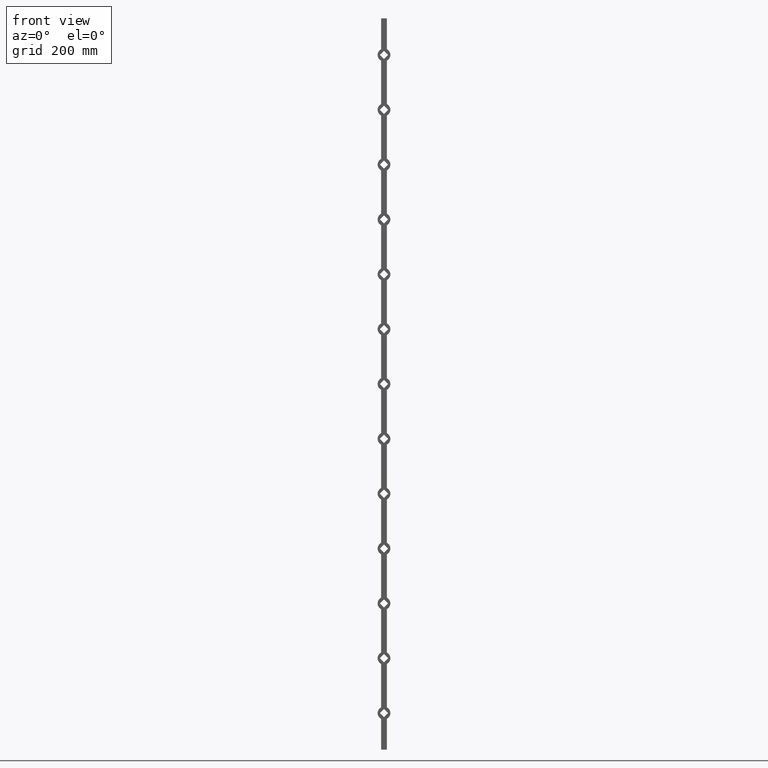
[diagram: clean part render]
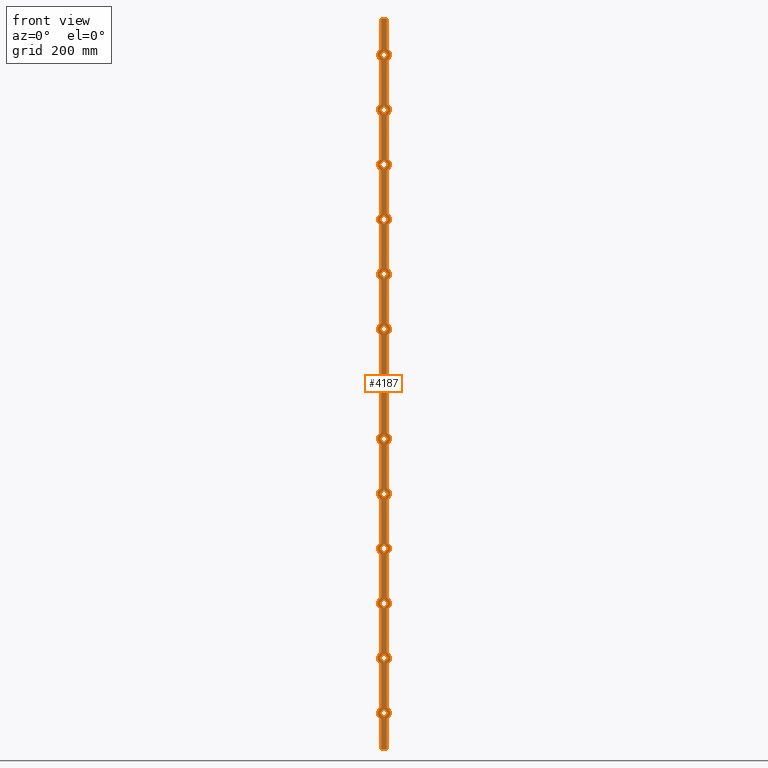
[diagram: same view with one face highlighted and labeled with its STEP entity id]
A machine part, front view. The second image highlights one B-rep face of the part: STEP entity #4187.
In plain terms, the highlighted planar face has unit normal (0, 1, 0).
Its self-contained STEP definition (entity closure, byte-faithful):
#1 = EDGE_CURVE ( 'NONE', #5089, #10445, #1913, .T. ) ;
#25 = AXIS2_PLACEMENT_3D ( 'NONE', #1550, #10659, #11847 ) ;
#43 = FACE_BOUND ( 'NONE', #4985, .T. ) ;
#45 = EDGE_CURVE ( 'NONE', #11332, #5225, #7636, .T. ) ;
#53 = CARTESIAN_POINT ( 'NONE',  ( 8.000000000000000000, -8.000000000000000000, -434.4356175837264686 ) ) ;
#56 = ORIENTED_EDGE ( 'NONE', *, *, #9698, .T. ) ;
#65 = VERTEX_POINT ( 'NONE', #7590 ) ;
#76 = ORIENTED_EDGE ( 'NONE', *, *, #4973, .T. ) ;
#82 = EDGE_LOOP ( 'NONE', ( #8039, #11955, #4439, #1010 ) ) ;
#122 = DIRECTION ( 'NONE',  ( -0.000000000000000000, -0.000000000000000000, -1.000000000000000000 ) ) ;
#139 = VERTEX_POINT ( 'NONE', #8854 ) ;
#159 = EDGE_CURVE ( 'NONE', #696, #3954, #12931, .T. ) ;
#176 = CARTESIAN_POINT ( 'NONE',  ( 8.000000000000000000, -8.000000000000000000, 1000.000000000000000 ) ) ;
#182 = EDGE_CURVE ( 'NONE', #5373, #6519, #5471, .T. ) ;
#202 = EDGE_CURVE ( 'NONE', #2521, #14674, #9752, .T. ) ;
#219 = VECTOR ( 'NONE', #11548, 1000.000000000000114 ) ;
#229 = DIRECTION ( 'NONE',  ( -0.7071067811865452413, -0.000000000000000000, 0.7071067811865499042 ) ) ;
#231 = DIRECTION ( 'NONE',  ( -0.000000000000000000, -0.000000000000000000, -1.000000000000000000 ) ) ;
#234 = FACE_BOUND ( 'NONE', #3113, .T. ) ;
#285 = VERTEX_POINT ( 'NONE', #2429 ) ;
#288 = LINE ( 'NONE', #9775, #8684 ) ;
#315 = AXIS2_PLACEMENT_3D ( 'NONE', #9015, #9169, #3376 ) ;
#338 = VERTEX_POINT ( 'NONE', #5125 ) ;
#403 = EDGE_CURVE ( 'NONE', #11697, #2186, #12400, .T. ) ;
#420 = CARTESIAN_POINT ( 'NONE',  ( -11.31370849898476827, -8.000000000000000000, -299.9999999999999432 ) ) ;
#427 = DIRECTION ( 'NONE',  ( 0.000000000000000000, 1.000000000000000000, 0.000000000000000000 ) ) ;
#435 = DIRECTION ( 'NONE',  ( 0.000000000000000000, 1.000000000000000000, 0.000000000000000000 ) ) ;
#438 = ORIENTED_EDGE ( 'NONE', *, *, #159, .T. ) ;
#475 = CARTESIAN_POINT ( 'NONE',  ( -1.233580155269347515E-13, -8.000000000000000000, -588.6862915010152619 ) ) ;
#488 = CARTESIAN_POINT ( 'NONE',  ( -1.233580155269347515E-13, -8.000000000000000000, 761.3137084989847381 ) ) ;
#490 = EDGE_CURVE ( 'NONE', #6892, #9609, #288, .T. ) ;
#492 = DIRECTION ( 'NONE',  ( 0.7071067811865530128, -0.000000000000000000, -0.7071067811865420216 ) ) ;
#500 = VERTEX_POINT ( 'NONE', #6448 ) ;
#523 = ORIENTED_EDGE ( 'NONE', *, *, #5343, .F. ) ;
#529 = CARTESIAN_POINT ( 'NONE',  ( 11.31370849898477182, -8.000000000000000000, -899.9999999999997726 ) ) ;
#531 = VECTOR ( 'NONE', #8992, 1000.000000000000000 ) ;
#536 = CARTESIAN_POINT ( 'NONE',  ( -7.999999999999998224, -8.000000000000000000, 315.5643824162734177 ) ) ;
#547 = ORIENTED_EDGE ( 'NONE', *, *, #2397, .T. ) ;
#552 = ORIENTED_EDGE ( 'NONE', *, *, #14295, .T. ) ;
#556 = CARTESIAN_POINT ( 'NONE',  ( -11.31370849898476827, -8.000000000000000000, 900.0000000000000000 ) ) ;
#581 = CARTESIAN_POINT ( 'NONE',  ( 0.000000000000000000, -8.000000000000000000, 1.110223024625156540E-13 ) ) ;
#589 = VECTOR ( 'NONE', #8208, 1000.000000000000114 ) ;
#595 = FACE_BOUND ( 'NONE', #82, .T. ) ;
#607 = VECTOR ( 'NONE', #2919, 1000.000000000000114 ) ;
#626 = CARTESIAN_POINT ( 'NONE',  ( -8.000000000000000000, -8.000000000000000000, -1000.000000000000000 ) ) ;
#676 = CARTESIAN_POINT ( 'NONE',  ( 11.31370849898477182, -8.000000000000000000, -749.9999999999998863 ) ) ;
#685 = CIRCLE ( 'NONE', #14771, 17.49999999999996092 ) ;
#690 = CARTESIAN_POINT ( 'NONE',  ( -11.31370849898476827, -8.000000000000000000, -449.9999999999998295 ) ) ;
#696 = VERTEX_POINT ( 'NONE', #2427 ) ;
#704 = CARTESIAN_POINT ( 'NONE',  ( 8.000000000000000000, -8.000000000000000000, 165.5643824162734177 ) ) ;
#739 = VERTEX_POINT ( 'NONE', #4882 ) ;
#775 = VECTOR ( 'NONE', #10265, 1000.000000000000000 ) ;
#797 = VECTOR ( 'NONE', #4370, 1000.000000000000114 ) ;
#807 = LINE ( 'NONE', #13288, #6916 ) ;
#850 = CARTESIAN_POINT ( 'NONE',  ( 0.000000000000000000, -8.000000000000000000, -449.9999999999998295 ) ) ;
#899 = EDGE_CURVE ( 'NONE', #5283, #8217, #11525, .T. ) ;
#903 = ORIENTED_EDGE ( 'NONE', *, *, #2903, .T. ) ;
#904 = CARTESIAN_POINT ( 'NONE',  ( -1.233580155269347515E-13, -8.000000000000000000, -588.6862915010152619 ) ) ;
#906 = VECTOR ( 'NONE', #6753, 1000.000000000000114 ) ;
#937 = LINE ( 'NONE', #5382, #7564 ) ;
#948 = LINE ( 'NONE', #1465, #589 ) ;
#960 = ORIENTED_EDGE ( 'NONE', *, *, #1, .F. ) ;
#974 = EDGE_CURVE ( 'NONE', #12803, #9282, #9574, .T. ) ;
#976 = DIRECTION ( 'NONE',  ( 0.000000000000000000, 0.000000000000000000, 1.000000000000000000 ) ) ;
#986 = CARTESIAN_POINT ( 'NONE',  ( -11.31370849898476827, -8.000000000000000000, 750.0000000000000000 ) ) ;
#1005 = CARTESIAN_POINT ( 'NONE',  ( -1.233580155269347515E-13, -8.000000000000000000, -738.6862915010151482 ) ) ;
#1008 = CARTESIAN_POINT ( 'NONE',  ( -1.233580155269347515E-13, -8.000000000000000000, -311.3137084989846812 ) ) ;
#1010 = ORIENTED_EDGE ( 'NONE', *, *, #899, .T. ) ;
#1017 = DIRECTION ( 'NONE',  ( -0.000000000000000000, -0.000000000000000000, -1.000000000000000000 ) ) ;
#1038 = LINE ( 'NONE', #5851, #12782 ) ;
#1049 = VECTOR ( 'NONE', #12630, 1000.000000000000000 ) ;
#1064 = CARTESIAN_POINT ( 'NONE',  ( -11.31370849898476827, -8.000000000000000000, -899.9999999999997726 ) ) ;
#1067 = DIRECTION ( 'NONE',  ( 0.000000000000000000, 1.000000000000000000, 0.000000000000000000 ) ) ;
#1095 = DIRECTION ( 'NONE',  ( -0.7071067811865530128, -0.000000000000000000, -0.7071067811865420216 ) ) ;
#1103 = DIRECTION ( 'NONE',  ( -0.7071067811865530128, -0.000000000000000000, -0.7071067811865420216 ) ) ;
#1115 = LINE ( 'NONE', #8745, #6124 ) ;
#1118 = VECTOR ( 'NONE', #10414, 1000.000000000000114 ) ;
#1126 = DIRECTION ( 'NONE',  ( 0.000000000000000000, 0.000000000000000000, 1.000000000000000000 ) ) ;
#1132 = FACE_BOUND ( 'NONE', #9780, .T. ) ;
#1137 = EDGE_CURVE ( 'NONE', #7190, #4822, #10622, .T. ) ;
#1142 = CARTESIAN_POINT ( 'NONE',  ( 0.000000000000000000, -8.000000000000000000, 900.0000000000000000 ) ) ;
#1153 = AXIS2_PLACEMENT_3D ( 'NONE', #4526, #6850, #3507 ) ;
#1155 = ORIENTED_EDGE ( 'NONE', *, *, #8489, .F. ) ;
#1160 = DIRECTION ( 'NONE',  ( -0.7071067811865530128, -0.000000000000000000, -0.7071067811865420216 ) ) ;
#1193 = CARTESIAN_POINT ( 'NONE',  ( 11.31370849898477182, -8.000000000000000000, 900.0000000000000000 ) ) ;
#1198 = VERTEX_POINT ( 'NONE', #1506 ) ;
#1206 = CARTESIAN_POINT ( 'NONE',  ( -8.000000000000000000, -8.000000000000000000, -615.5643824162733608 ) ) ;
#1276 = EDGE_CURVE ( 'NONE', #65, #9282, #4014, .T. ) ;
#1309 = LINE ( 'NONE', #5302, #8796 ) ;
#1327 = CIRCLE ( 'NONE', #5142, 17.49999999999996092 ) ;
#1381 = ORIENTED_EDGE ( 'NONE', *, *, #8613, .F. ) ;
#1387 = EDGE_CURVE ( 'NONE', #6070, #14549, #807, .T. ) ;
#1396 = CARTESIAN_POINT ( 'NONE',  ( 11.31370849898477182, -8.000000000000000000, -449.9999999999998295 ) ) ;
#1440 = CIRCLE ( 'NONE', #1896, 17.50000000000001421 ) ;
#1441 = DIRECTION ( 'NONE',  ( 0.000000000000000000, 0.000000000000000000, 1.000000000000000000 ) ) ;
#1448 = EDGE_CURVE ( 'NONE', #11332, #10746, #14676, .T. ) ;
#1465 = CARTESIAN_POINT ( 'NONE',  ( -1.233580155269347515E-13, -8.000000000000000000, -911.3137084989845107 ) ) ;
#1472 = VECTOR ( 'NONE', #6469, 1000.000000000000000 ) ;
#1480 = VERTEX_POINT ( 'NONE', #9147 ) ;
#1491 = ORIENTED_EDGE ( 'NONE', *, *, #4914, .F. ) ;
#1506 = CARTESIAN_POINT ( 'NONE',  ( -8.000000000000040856, -8.000000000000000000, -584.4356175837266392 ) ) ;
#1513 = VECTOR ( 'NONE', #4755, 1000.000000000000114 ) ;
#1550 = CARTESIAN_POINT ( 'NONE',  ( 0.000000000000000000, -8.000000000000000000, -749.9999999999998863 ) ) ;
#1576 = VECTOR ( 'NONE', #8625, 1000.000000000000114 ) ;
#1580 = ORIENTED_EDGE ( 'NONE', *, *, #11652, .T. ) ;
#1594 = LINE ( 'NONE', #12794, #9969 ) ;
#1602 = CARTESIAN_POINT ( 'NONE',  ( 0.000000000000000000, -8.000000000000000000, -150.0000000000000284 ) ) ;
#1637 = CARTESIAN_POINT ( 'NONE',  ( -1.233580155269347515E-13, -8.000000000000000000, -611.3137084989847381 ) ) ;
#1659 = CARTESIAN_POINT ( 'NONE',  ( 0.000000000000000000, -8.000000000000000000, -299.9999999999999432 ) ) ;
#1677 = LINE ( 'NONE', #12413, #10053 ) ;
#1682 = CARTESIAN_POINT ( 'NONE',  ( 8.000000000000000000, -8.000000000000000000, -734.4356175837265255 ) ) ;
#1708 = LINE ( 'NONE', #9070, #8322 ) ;
#1759 = CIRCLE ( 'NONE', #3531, 17.50000000000001421 ) ;
#1808 = LINE ( 'NONE', #626, #8424 ) ;
#1813 = ORIENTED_EDGE ( 'NONE', *, *, #8548, .T. ) ;
#1835 = EDGE_LOOP ( 'NONE', ( #12079, #2143, #4506, #11965 ) ) ;
#1839 = ORIENTED_EDGE ( 'NONE', *, *, #2414, .T. ) ;
#1873 = AXIS2_PLACEMENT_3D ( 'NONE', #1602, #3780, #9382 ) ;
#1896 = AXIS2_PLACEMENT_3D ( 'NONE', #10877, #4039, #3895 ) ;
#1913 = CIRCLE ( 'NONE', #25, 17.49999999999996092 ) ;
#1968 = VECTOR ( 'NONE', #6274, 1000.000000000000000 ) ;
#1971 = EDGE_CURVE ( 'NONE', #10664, #7341, #3283, .T. ) ;
#1991 = VECTOR ( 'NONE', #12015, 1000.000000000000000 ) ;
#1999 = EDGE_LOOP ( 'NONE', ( #14669, #11418, #76, #903 ) ) ;
#2005 = DIRECTION ( 'NONE',  ( 0.000000000000000000, 0.000000000000000000, 1.000000000000000000 ) ) ;
#2011 = CARTESIAN_POINT ( 'NONE',  ( 11.31370849898477182, -8.000000000000000000, 300.0000000000000568 ) ) ;
#2050 = DIRECTION ( 'NONE',  ( 0.7071067811865530128, -0.000000000000000000, -0.7071067811865420216 ) ) ;
#2094 = VERTEX_POINT ( 'NONE', #12328 ) ;
#2098 = ORIENTED_EDGE ( 'NONE', *, *, #12332, .F. ) ;
#2103 = ORIENTED_EDGE ( 'NONE', *, *, #10714, .F. ) ;
#2143 = ORIENTED_EDGE ( 'NONE', *, *, #4313, .T. ) ;
#2152 = LINE ( 'NONE', #904, #10543 ) ;
#2153 = CARTESIAN_POINT ( 'NONE',  ( 0.000000000000000000, -8.000000000000000000, -600.0000000000000000 ) ) ;
#2156 = CARTESIAN_POINT ( 'NONE',  ( -1.233580155269347515E-13, -8.000000000000000000, 311.3137084989847381 ) ) ;
#2159 = ORIENTED_EDGE ( 'NONE', *, *, #2714, .T. ) ;
#2170 = CARTESIAN_POINT ( 'NONE',  ( -1.233580155269347515E-13, -8.000000000000000000, -438.6862915010151482 ) ) ;
#2175 = CARTESIAN_POINT ( 'NONE',  ( -8.000000000000000000, -8.000000000000000000, 1000.000000000000000 ) ) ;
#2186 = VERTEX_POINT ( 'NONE', #9095 ) ;
#2188 = CARTESIAN_POINT ( 'NONE',  ( -1.233580155269347515E-13, -8.000000000000000000, -888.6862915010150346 ) ) ;
#2193 = LINE ( 'NONE', #14767, #13913 ) ;
#2194 = VERTEX_POINT ( 'NONE', #2373 ) ;
#2211 = EDGE_CURVE ( 'NONE', #10905, #3440, #3479, .T. ) ;
#2241 = AXIS2_PLACEMENT_3D ( 'NONE', #3808, #11785, #12849 ) ;
#2269 = CARTESIAN_POINT ( 'NONE',  ( -8.000000000000000000, -8.000000000000000000, -165.5643824162734177 ) ) ;
#2273 = DIRECTION ( 'NONE',  ( -0.7071067811865530128, -0.000000000000000000, -0.7071067811865420216 ) ) ;
#2275 = CIRCLE ( 'NONE', #6540, 17.50000000000000711 ) ;
#2291 = EDGE_LOOP ( 'NONE', ( #4054, #9622, #6295, #12144, #1491, #11864, #2103, #960, #523, #1381, #8227, #13930, #8096, #13434, #4385, #13310, #7242, #12004, #2098, #7703, #6544, #12281, #4468, #3723, #5976, #11346, #4812, #12801, #4452, #8021, #11576, #9217, #7672, #1155, #547, #8667, #13168, #4091, #6773, #3466, #9295, #9788, #3315, #13420, #13322, #14729, #7881, #6029, #4112, #8420, #12288, #10009, #3280, #6220, #11271, #12499 ) ) ;
#2295 = CARTESIAN_POINT ( 'NONE',  ( -8.000000000000000000, -8.000000000000000000, -915.5643824162731335 ) ) ;
#2349 = CARTESIAN_POINT ( 'NONE',  ( 11.31370849898477537, -8.000000000000000000, 300.0000000000000568 ) ) ;
#2357 = LINE ( 'NONE', #7129, #4311 ) ;
#2373 = CARTESIAN_POINT ( 'NONE',  ( -11.31370849898476827, -8.000000000000000000, 900.0000000000000000 ) ) ;
#2395 = LINE ( 'NONE', #4596, #4729 ) ;
#2397 = EDGE_CURVE ( 'NONE', #10915, #13023, #2601, .T. ) ;
#2414 = EDGE_CURVE ( 'NONE', #14549, #739, #10980, .T. ) ;
#2427 = CARTESIAN_POINT ( 'NONE',  ( -1.233580155269347515E-13, -8.000000000000000000, -11.31370849898461017 ) ) ;
#2429 = CARTESIAN_POINT ( 'NONE',  ( -7.999999999999998224, -8.000000000000000000, -284.4356175837265255 ) ) ;
#2430 = EDGE_CURVE ( 'NONE', #12373, #3794, #10272, .T. ) ;
#2468 = VERTEX_POINT ( 'NONE', #8848 ) ;
#2481 = VECTOR ( 'NONE', #9479, 1000.000000000000114 ) ;
#2518 = CARTESIAN_POINT ( 'NONE',  ( -8.000000000000000000, -8.000000000000000000, 1000.000000000000000 ) ) ;
#2521 = VERTEX_POINT ( 'NONE', #12150 ) ;
#2572 = EDGE_CURVE ( 'NONE', #13653, #12373, #5100, .T. ) ;
#2586 = CARTESIAN_POINT ( 'NONE',  ( -1.233580155269347515E-13, -8.000000000000000000, 438.6862915010153188 ) ) ;
#2601 = LINE ( 'NONE', #7307, #9560 ) ;
#2624 = LINE ( 'NONE', #8128, #11369 ) ;
#2635 = LINE ( 'NONE', #2156, #11380 ) ;
#2668 = DIRECTION ( 'NONE',  ( 0.7071067811865530128, -0.000000000000000000, -0.7071067811865420216 ) ) ;
#2691 = VECTOR ( 'NONE', #122, 1000.000000000000000 ) ;
#2695 = CARTESIAN_POINT ( 'NONE',  ( -11.31370849898476827, -8.000000000000000000, -150.0000000000000284 ) ) ;
#2707 = CARTESIAN_POINT ( 'NONE',  ( 11.31370849898477537, -8.000000000000000000, 149.9999999999999716 ) ) ;
#2714 = EDGE_CURVE ( 'NONE', #12295, #11697, #4912, .T. ) ;
#2728 = VERTEX_POINT ( 'NONE', #420 ) ;
#2778 = EDGE_CURVE ( 'NONE', #14652, #8029, #9733, .T. ) ;
#2804 = ORIENTED_EDGE ( 'NONE', *, *, #403, .T. ) ;
#2828 = DIRECTION ( 'NONE',  ( -0.7071067811865530128, -0.000000000000000000, -0.7071067811865420216 ) ) ;
#2836 = VECTOR ( 'NONE', #3096, 1000.000000000000114 ) ;
#2840 = AXIS2_PLACEMENT_3D ( 'NONE', #7302, #427, #1441 ) ;
#2864 = CARTESIAN_POINT ( 'NONE',  ( 8.000000000000000000, -8.000000000000000000, 1000.000000000000000 ) ) ;
#2867 = DIRECTION ( 'NONE',  ( 0.000000000000000000, 1.000000000000000000, 0.000000000000000000 ) ) ;
#2887 = EDGE_CURVE ( 'NONE', #7181, #11787, #7962, .T. ) ;
#2901 = FACE_BOUND ( 'NONE', #11533, .T. ) ;
#2903 = EDGE_CURVE ( 'NONE', #12331, #3539, #10077, .T. ) ;
#2919 = DIRECTION ( 'NONE',  ( -0.7071067811865452413, -0.000000000000000000, 0.7071067811865499042 ) ) ;
#2931 = DIRECTION ( 'NONE',  ( 1.000000000000000000, 0.000000000000000000, 0.000000000000000000 ) ) ;
#2940 = PLANE ( 'NONE',  #14333 ) ;
#2944 = EDGE_CURVE ( 'NONE', #10723, #6766, #1708, .T. ) ;
#2954 = DIRECTION ( 'NONE',  ( -0.7071067811865452413, -0.000000000000000000, 0.7071067811865499042 ) ) ;
#2993 = CARTESIAN_POINT ( 'NONE',  ( -1.233580155269347515E-13, -8.000000000000000000, 888.6862915010152619 ) ) ;
#3041 = LINE ( 'NONE', #9363, #2691 ) ;
#3058 = CARTESIAN_POINT ( 'NONE',  ( -1.233580155269347515E-13, -8.000000000000000000, -461.3137084989845675 ) ) ;
#3096 = DIRECTION ( 'NONE',  ( -0.7071067811865452413, -0.000000000000000000, 0.7071067811865499042 ) ) ;
#3113 = EDGE_LOOP ( 'NONE', ( #13338, #6091, #9854, #12666 ) ) ;
#3114 = DIRECTION ( 'NONE',  ( 0.7071067811865530128, -0.000000000000000000, -0.7071067811865420216 ) ) ;
#3116 = VECTOR ( 'NONE', #13135, 1000.000000000000114 ) ;
#3125 = CARTESIAN_POINT ( 'NONE',  ( 0.000000000000000000, -8.000000000000000000, -899.9999999999997726 ) ) ;
#3141 = CARTESIAN_POINT ( 'NONE',  ( 0.000000000000000000, -8.000000000000000000, 150.0000000000000284 ) ) ;
#3161 = CARTESIAN_POINT ( 'NONE',  ( -1.233580155269347515E-13, -8.000000000000000000, -138.6862915010152904 ) ) ;
#3166 = CARTESIAN_POINT ( 'NONE',  ( -1.233580155269347515E-13, -8.000000000000000000, 611.3137084989848518 ) ) ;
#3168 = ORIENTED_EDGE ( 'NONE', *, *, #5258, .T. ) ;
#3201 = AXIS2_PLACEMENT_3D ( 'NONE', #1659, #9438, #12831 ) ;
#3212 = EDGE_CURVE ( 'NONE', #4275, #13489, #13406, .T. ) ;
#3235 = CARTESIAN_POINT ( 'NONE',  ( -1.233580155269347515E-13, -8.000000000000000000, -611.3137084989847381 ) ) ;
#3280 = ORIENTED_EDGE ( 'NONE', *, *, #6585, .T. ) ;
#3283 = CIRCLE ( 'NONE', #11970, 17.49999999999996092 ) ;
#3286 = VECTOR ( 'NONE', #6657, 1000.000000000000000 ) ;
#3315 = ORIENTED_EDGE ( 'NONE', *, *, #3756, .T. ) ;
#3338 = EDGE_CURVE ( 'NONE', #6257, #11303, #10782, .T. ) ;
#3340 = VECTOR ( 'NONE', #13142, 1000.000000000000114 ) ;
#3376 = DIRECTION ( 'NONE',  ( 0.000000000000000000, 0.000000000000000000, 1.000000000000000000 ) ) ;
#3387 = EDGE_CURVE ( 'NONE', #2194, #5880, #12197, .T. ) ;
#3397 = VECTOR ( 'NONE', #4116, 1000.000000000000114 ) ;
#3399 = CARTESIAN_POINT ( 'NONE',  ( -11.31370849898476827, -8.000000000000000000, -749.9999999999998863 ) ) ;
#3440 = VERTEX_POINT ( 'NONE', #7250 ) ;
#3447 = LINE ( 'NONE', #11755, #13036 ) ;
#3466 = ORIENTED_EDGE ( 'NONE', *, *, #10367, .F. ) ;
#3479 = LINE ( 'NONE', #13829, #5639 ) ;
#3499 = CARTESIAN_POINT ( 'NONE',  ( -1.233580155269347515E-13, -8.000000000000000000, 738.6862915010152619 ) ) ;
#3504 = CARTESIAN_POINT ( 'NONE',  ( 8.000000000000000000, -8.000000000000000000, 1000.000000000000000 ) ) ;
#3507 = DIRECTION ( 'NONE',  ( 0.000000000000000000, 0.000000000000000000, 1.000000000000000000 ) ) ;
#3517 = EDGE_CURVE ( 'NONE', #14310, #10664, #4733, .T. ) ;
#3531 = AXIS2_PLACEMENT_3D ( 'NONE', #13836, #11461, #4580 ) ;
#3535 = CARTESIAN_POINT ( 'NONE',  ( -11.31370849898476827, -8.000000000000000000, 150.0000000000000284 ) ) ;
#3539 = VERTEX_POINT ( 'NONE', #3058 ) ;
#3541 = LINE ( 'NONE', #5829, #1049 ) ;
#3557 = LINE ( 'NONE', #2011, #10356 ) ;
#3585 = ORIENTED_EDGE ( 'NONE', *, *, #202, .T. ) ;
#3600 = CIRCLE ( 'NONE', #13040, 17.50000000000001421 ) ;
#3613 = DIRECTION ( 'NONE',  ( 0.000000000000000000, 0.000000000000000000, 1.000000000000000000 ) ) ;
#3643 = EDGE_LOOP ( 'NONE', ( #438, #10611, #3168, #552 ) ) ;
#3653 = DIRECTION ( 'NONE',  ( -0.000000000000000000, -0.000000000000000000, -1.000000000000000000 ) ) ;
#3658 = DIRECTION ( 'NONE',  ( 0.000000000000000000, 0.000000000000000000, 1.000000000000000000 ) ) ;
#3720 = ORIENTED_EDGE ( 'NONE', *, *, #3212, .T. ) ;
#3723 = ORIENTED_EDGE ( 'NONE', *, *, #11034, .F. ) ;
#3730 = VERTEX_POINT ( 'NONE', #13336 ) ;
#3738 = ORIENTED_EDGE ( 'NONE', *, *, #4893, .T. ) ;
#3749 = CARTESIAN_POINT ( 'NONE',  ( -11.31370849898476827, -8.000000000000000000, 1.110223024625156540E-13 ) ) ;
#3756 = EDGE_CURVE ( 'NONE', #11704, #4805, #1677, .T. ) ;
#3766 = CARTESIAN_POINT ( 'NONE',  ( 0.000000000000000000, -8.000000000000000000, 750.0000000000000000 ) ) ;
#3772 = CARTESIAN_POINT ( 'NONE',  ( -8.000000000000000000, -8.000000000000000000, 1000.000000000000000 ) ) ;
#3774 = CARTESIAN_POINT ( 'NONE',  ( 8.000000000000000000, -8.000000000000000000, 1000.000000000000000 ) ) ;
#3780 = DIRECTION ( 'NONE',  ( 0.000000000000000000, 1.000000000000000000, 0.000000000000000000 ) ) ;
#3792 = FACE_BOUND ( 'NONE', #12719, .T. ) ;
#3794 = VERTEX_POINT ( 'NONE', #14683 ) ;
#3808 = CARTESIAN_POINT ( 'NONE',  ( 0.000000000000000000, -8.000000000000000000, -299.9999999999999432 ) ) ;
#3816 = DIRECTION ( 'NONE',  ( -0.000000000000000000, -0.000000000000000000, -1.000000000000000000 ) ) ;
#3895 = DIRECTION ( 'NONE',  ( 0.000000000000000000, 0.000000000000000000, 1.000000000000000000 ) ) ;
#3954 = VERTEX_POINT ( 'NONE', #3749 ) ;
#3959 = CARTESIAN_POINT ( 'NONE',  ( -8.000000000000040856, -8.000000000000000000, -884.4356175837264118 ) ) ;
#4014 = CIRCLE ( 'NONE', #7513, 17.49999999999996092 ) ;
#4039 = DIRECTION ( 'NONE',  ( 0.000000000000000000, 1.000000000000000000, 0.000000000000000000 ) ) ;
#4041 = DIRECTION ( 'NONE',  ( -0.7071067811865452413, -0.000000000000000000, 0.7071067811865499042 ) ) ;
#4054 = ORIENTED_EDGE ( 'NONE', *, *, #8600, .T. ) ;
#4091 = ORIENTED_EDGE ( 'NONE', *, *, #6212, .F. ) ;
#4096 = CARTESIAN_POINT ( 'NONE',  ( -8.000000000000000000, -8.000000000000000000, 15.56438241627350116 ) ) ;
#4112 = ORIENTED_EDGE ( 'NONE', *, *, #7678, .T. ) ;
#4116 = DIRECTION ( 'NONE',  ( 0.7071067811865530128, -0.000000000000000000, -0.7071067811865420216 ) ) ;
#4118 = CARTESIAN_POINT ( 'NONE',  ( -1.233580155269347515E-13, -8.000000000000000000, 588.6862915010153756 ) ) ;
#4120 = VERTEX_POINT ( 'NONE', #704 ) ;
#4126 = VERTEX_POINT ( 'NONE', #10979 ) ;
#4138 = DIRECTION ( 'NONE',  ( -0.7071067811865452413, -0.000000000000000000, 0.7071067811865499042 ) ) ;
#4141 = ORIENTED_EDGE ( 'NONE', *, *, #4623, .T. ) ;
#4145 = CIRCLE ( 'NONE', #1873, 17.50000000000001421 ) ;
#4161 = ORIENTED_EDGE ( 'NONE', *, *, #2778, .T. ) ;
#4169 = CARTESIAN_POINT ( 'NONE',  ( 11.31370849898477182, -8.000000000000000000, -299.9999999999999432 ) ) ;
#4187 = ADVANCED_FACE ( 'NONE', ( #43, #234, #13210, #14279, #595, #12523, #7576, #8798, #14636, #1132, #5408, #3792, #2901, #9874 ), #2940, .F. ) ;
#4199 = CARTESIAN_POINT ( 'NONE',  ( -8.000000000000000000, -8.000000000000000000, 1000.000000000000000 ) ) ;
#4213 = VERTEX_POINT ( 'NONE', #8789 ) ;
#4217 = VECTOR ( 'NONE', #6805, 1000.000000000000114 ) ;
#4258 = CARTESIAN_POINT ( 'NONE',  ( 8.000000000000000000, -8.000000000000000000, -134.4356175837266392 ) ) ;
#4275 = VERTEX_POINT ( 'NONE', #3235 ) ;
#4290 = DIRECTION ( 'NONE',  ( 0.000000000000000000, 1.000000000000000000, 0.000000000000000000 ) ) ;
#4311 = VECTOR ( 'NONE', #9375, 1000.000000000000114 ) ;
#4312 = VERTEX_POINT ( 'NONE', #13418 ) ;
#4313 = EDGE_CURVE ( 'NONE', #4126, #11550, #2193, .T. ) ;
#4326 = LINE ( 'NONE', #4118, #10754 ) ;
#4337 = LINE ( 'NONE', #8409, #14277 ) ;
#4340 = VECTOR ( 'NONE', #2668, 1000.000000000000114 ) ;
#4370 = DIRECTION ( 'NONE',  ( 0.7071067811865452413, -0.000000000000000000, 0.7071067811865499042 ) ) ;
#4380 = EDGE_CURVE ( 'NONE', #3954, #14716, #5233, .T. ) ;
#4385 = ORIENTED_EDGE ( 'NONE', *, *, #2572, .F. ) ;
#4405 = VERTEX_POINT ( 'NONE', #2349 ) ;
#4439 = ORIENTED_EDGE ( 'NONE', *, *, #11127, .T. ) ;
#4446 = EDGE_CURVE ( 'NONE', #14371, #13653, #4145, .T. ) ;
#4452 = ORIENTED_EDGE ( 'NONE', *, *, #3517, .F. ) ;
#4455 = CARTESIAN_POINT ( 'NONE',  ( 8.000000000000000000, -8.000000000000000000, 15.56438241627350116 ) ) ;
#4458 = DIRECTION ( 'NONE',  ( 0.000000000000000000, 0.000000000000000000, 1.000000000000000000 ) ) ;
#4468 = ORIENTED_EDGE ( 'NONE', *, *, #13366, .F. ) ;
#4478 = CARTESIAN_POINT ( 'NONE',  ( -7.999999999999998224, -8.000000000000000000, 165.5643824162734177 ) ) ;
#4506 = ORIENTED_EDGE ( 'NONE', *, *, #10144, .T. ) ;
#4517 = DIRECTION ( 'NONE',  ( -0.7071067811865452413, -0.000000000000000000, 0.7071067811865499042 ) ) ;
#4526 = CARTESIAN_POINT ( 'NONE',  ( 0.000000000000000000, -8.000000000000000000, 900.0000000000000000 ) ) ;
#4578 = EDGE_CURVE ( 'NONE', #4656, #13042, #13734, .T. ) ;
#4580 = DIRECTION ( 'NONE',  ( 0.000000000000000000, 0.000000000000000000, 1.000000000000000000 ) ) ;
#4590 = VECTOR ( 'NONE', #4138, 1000.000000000000114 ) ;
#4596 = CARTESIAN_POINT ( 'NONE',  ( 8.000000000000000000, -8.000000000000000000, 1000.000000000000000 ) ) ;
#4604 = EDGE_CURVE ( 'NONE', #13042, #7190, #4326, .T. ) ;
#4623 = EDGE_CURVE ( 'NONE', #500, #2521, #9853, .T. ) ;
#4656 = VERTEX_POINT ( 'NONE', #3166 ) ;
#4662 = LINE ( 'NONE', #5021, #1968 ) ;
#4678 = DIRECTION ( 'NONE',  ( 0.000000000000000000, 0.000000000000000000, 1.000000000000000000 ) ) ;
#4679 = EDGE_CURVE ( 'NONE', #9609, #14236, #937, .T. ) ;
#4700 = LINE ( 'NONE', #10830, #12695 ) ;
#4703 = VECTOR ( 'NONE', #13441, 1000.000000000000114 ) ;
#4715 = CARTESIAN_POINT ( 'NONE',  ( -11.31370849898476827, -8.000000000000000000, 750.0000000000000000 ) ) ;
#4729 = VECTOR ( 'NONE', #9180, 1000.000000000000000 ) ;
#4733 = LINE ( 'NONE', #2864, #11669 ) ;
#4755 = DIRECTION ( 'NONE',  ( 0.7071067811865452413, -0.000000000000000000, 0.7071067811865499042 ) ) ;
#4805 = VERTEX_POINT ( 'NONE', #4478 ) ;
#4812 = ORIENTED_EDGE ( 'NONE', *, *, #12067, .F. ) ;
#4822 = VERTEX_POINT ( 'NONE', #6797 ) ;
#4829 = VECTOR ( 'NONE', #2050, 1000.000000000000114 ) ;
#4848 = VERTEX_POINT ( 'NONE', #11505 ) ;
#4882 = CARTESIAN_POINT ( 'NONE',  ( -1.233580155269347515E-13, -8.000000000000000000, 461.3137084989847949 ) ) ;
#4893 = EDGE_CURVE ( 'NONE', #5285, #8935, #6671, .T. ) ;
#4912 = LINE ( 'NONE', #2188, #8840 ) ;
#4914 = EDGE_CURVE ( 'NONE', #13504, #5440, #14625, .T. ) ;
#4925 = DIRECTION ( 'NONE',  ( 0.000000000000000000, 1.000000000000000000, 0.000000000000000000 ) ) ;
#4927 = DIRECTION ( 'NONE',  ( 0.000000000000000000, 1.000000000000000000, 0.000000000000000000 ) ) ;
#4928 = DIRECTION ( 'NONE',  ( -0.000000000000000000, -0.000000000000000000, -1.000000000000000000 ) ) ;
#4935 = DIRECTION ( 'NONE',  ( -0.7071067811865452413, -0.000000000000000000, 0.7071067811865499042 ) ) ;
#4971 = ORIENTED_EDGE ( 'NONE', *, *, #14512, .T. ) ;
#4973 = EDGE_CURVE ( 'NONE', #11787, #12331, #13193, .T. ) ;
#4983 = CIRCLE ( 'NONE', #6125, 17.50000000000001421 ) ;
#4985 = EDGE_LOOP ( 'NONE', ( #6300, #10814, #4141, #3585 ) ) ;
#4994 = LINE ( 'NONE', #6901, #11596 ) ;
#4995 = DIRECTION ( 'NONE',  ( -0.7071067811865530128, -0.000000000000000000, -0.7071067811865420216 ) ) ;
#5021 = CARTESIAN_POINT ( 'NONE',  ( -8.000000000000000000, -8.000000000000000000, 1000.000000000000000 ) ) ;
#5028 = VERTEX_POINT ( 'NONE', #475 ) ;
#5039 = LINE ( 'NONE', #13922, #1991 ) ;
#5059 = AXIS2_PLACEMENT_3D ( 'NONE', #9556, #6027, #3658 ) ;
#5089 = VERTEX_POINT ( 'NONE', #1682 ) ;
#5096 = LINE ( 'NONE', #1193, #4340 ) ;
#5100 = LINE ( 'NONE', #12241, #3286 ) ;
#5125 = CARTESIAN_POINT ( 'NONE',  ( 7.999999999999998224, -8.000000000000000000, 284.4356175837266392 ) ) ;
#5142 = AXIS2_PLACEMENT_3D ( 'NONE', #1142, #5786, #3613 ) ;
#5169 = CARTESIAN_POINT ( 'NONE',  ( 8.000000000000000000, -8.000000000000000000, 915.5643824162733608 ) ) ;
#5179 = CARTESIAN_POINT ( 'NONE',  ( -8.000000000000040856, -8.000000000000000000, 765.5643824162733608 ) ) ;
#5225 = VERTEX_POINT ( 'NONE', #4096 ) ;
#5233 = LINE ( 'NONE', #9330, #12167 ) ;
#5258 = EDGE_CURVE ( 'NONE', #14716, #6638, #2357, .T. ) ;
#5260 = VECTOR ( 'NONE', #1103, 1000.000000000000114 ) ;
#5283 = VERTEX_POINT ( 'NONE', #2707 ) ;
#5285 = VERTEX_POINT ( 'NONE', #14332 ) ;
#5302 = CARTESIAN_POINT ( 'NONE',  ( 11.31370849898477182, -8.000000000000000000, -150.0000000000000284 ) ) ;
#5313 = LINE ( 'NONE', #1637, #3340 ) ;
#5333 = CARTESIAN_POINT ( 'NONE',  ( -1.233580155269347515E-13, -8.000000000000000000, 588.6862915010153756 ) ) ;
#5343 = EDGE_CURVE ( 'NONE', #3730, #5089, #5039, .T. ) ;
#5368 = EDGE_CURVE ( 'NONE', #4848, #2468, #10729, .T. ) ;
#5373 = VERTEX_POINT ( 'NONE', #7575 ) ;
#5382 = CARTESIAN_POINT ( 'NONE',  ( 8.000000000000000000, -8.000000000000000000, 1000.000000000000000 ) ) ;
#5398 = DIRECTION ( 'NONE',  ( 0.000000000000000000, 1.000000000000000000, 0.000000000000000000 ) ) ;
#5408 = FACE_BOUND ( 'NONE', #1835, .T. ) ;
#5410 = EDGE_CURVE ( 'NONE', #6892, #12778, #13884, .T. ) ;
#5440 = VERTEX_POINT ( 'NONE', #12166 ) ;
#5459 = VECTOR ( 'NONE', #229, 1000.000000000000114 ) ;
#5471 = CIRCLE ( 'NONE', #315, 17.49999999999996092 ) ;
#5484 = CARTESIAN_POINT ( 'NONE',  ( -8.000000000000000000, -8.000000000000000000, -465.5643824162732471 ) ) ;
#5510 = CARTESIAN_POINT ( 'NONE',  ( 8.000000000000000000, -8.000000000000000000, -15.56438241627327912 ) ) ;
#5513 = VERTEX_POINT ( 'NONE', #13465 ) ;
#5520 = VERTEX_POINT ( 'NONE', #53 ) ;
#5531 = CARTESIAN_POINT ( 'NONE',  ( 11.31370849898477182, -8.000000000000000000, 750.0000000000000000 ) ) ;
#5635 = VECTOR ( 'NONE', #12819, 1000.000000000000114 ) ;
#5639 = VECTOR ( 'NONE', #5982, 1000.000000000000114 ) ;
#5712 = CARTESIAN_POINT ( 'NONE',  ( 8.000000000000000000, -8.000000000000000000, -284.4356175837265255 ) ) ;
#5763 = VERTEX_POINT ( 'NONE', #12003 ) ;
#5782 = EDGE_LOOP ( 'NONE', ( #8614, #1839, #9276, #5900 ) ) ;
#5786 = DIRECTION ( 'NONE',  ( 0.000000000000000000, 1.000000000000000000, 0.000000000000000000 ) ) ;
#5812 = CARTESIAN_POINT ( 'NONE',  ( -8.000000000000000000, -8.000000000000000000, 884.4356175837266392 ) ) ;
#5819 = VECTOR ( 'NONE', #10326, 1000.000000000000114 ) ;
#5829 = CARTESIAN_POINT ( 'NONE',  ( 8.000000000000000000, -8.000000000000000000, 1000.000000000000000 ) ) ;
#5851 = CARTESIAN_POINT ( 'NONE',  ( 8.000000000000000000, -8.000000000000000000, 1000.000000000000000 ) ) ;
#5852 = DIRECTION ( 'NONE',  ( 0.7071067811865452413, -0.000000000000000000, 0.7071067811865499042 ) ) ;
#5865 = EDGE_CURVE ( 'NONE', #4822, #4656, #10008, .T. ) ;
#5880 = VERTEX_POINT ( 'NONE', #7840 ) ;
#5900 = ORIENTED_EDGE ( 'NONE', *, *, #8469, .T. ) ;
#5904 = LINE ( 'NONE', #3774, #6082 ) ;
#5946 = AXIS2_PLACEMENT_3D ( 'NONE', #6395, #13305, #8831 ) ;
#5976 = ORIENTED_EDGE ( 'NONE', *, *, #14640, .F. ) ;
#5982 = DIRECTION ( 'NONE',  ( 0.7071067811865452413, -0.000000000000000000, 0.7071067811865499042 ) ) ;
#6027 = DIRECTION ( 'NONE',  ( 0.000000000000000000, 1.000000000000000000, 0.000000000000000000 ) ) ;
#6029 = ORIENTED_EDGE ( 'NONE', *, *, #6401, .F. ) ;
#6059 = CARTESIAN_POINT ( 'NONE',  ( 8.000000000000000000, -8.000000000000000000, 1000.000000000000000 ) ) ;
#6070 = VERTEX_POINT ( 'NONE', #2586 ) ;
#6076 = DIRECTION ( 'NONE',  ( -0.000000000000000000, -0.000000000000000000, -1.000000000000000000 ) ) ;
#6082 = VECTOR ( 'NONE', #11807, 1000.000000000000000 ) ;
#6091 = ORIENTED_EDGE ( 'NONE', *, *, #5865, .T. ) ;
#6124 = VECTOR ( 'NONE', #6520, 1000.000000000000000 ) ;
#6125 = AXIS2_PLACEMENT_3D ( 'NONE', #850, #5398, #14564 ) ;
#6142 = CARTESIAN_POINT ( 'NONE',  ( 7.999999999999998224, -8.000000000000000000, 134.4356175837266392 ) ) ;
#6179 = CIRCLE ( 'NONE', #2840, 17.49999999999996092 ) ;
#6186 = CARTESIAN_POINT ( 'NONE',  ( -1.233580155269347515E-13, -8.000000000000000000, 461.3137084989847949 ) ) ;
#6192 = DIRECTION ( 'NONE',  ( 1.000000000000000000, 0.000000000000000000, 0.000000000000000000 ) ) ;
#6202 = CARTESIAN_POINT ( 'NONE',  ( -1.233580155269347515E-13, -8.000000000000000000, -161.3137084989847381 ) ) ;
#6208 = AXIS2_PLACEMENT_3D ( 'NONE', #3125, #12195, #6650 ) ;
#6212 = EDGE_CURVE ( 'NONE', #4848, #7993, #9301, .T. ) ;
#6220 = ORIENTED_EDGE ( 'NONE', *, *, #13604, .F. ) ;
#6229 = CARTESIAN_POINT ( 'NONE',  ( -1.233580155269347515E-13, -8.000000000000000000, -11.31370849898461017 ) ) ;
#6243 = ORIENTED_EDGE ( 'NONE', *, *, #13716, .T. ) ;
#6254 = CARTESIAN_POINT ( 'NONE',  ( -8.000000000000000000, -8.000000000000000000, 134.4356175837266392 ) ) ;
#6257 = VERTEX_POINT ( 'NONE', #9670 ) ;
#6274 = DIRECTION ( 'NONE',  ( -0.000000000000000000, -0.000000000000000000, -1.000000000000000000 ) ) ;
#6288 = CARTESIAN_POINT ( 'NONE',  ( 0.000000000000000000, -8.000000000000000000, -749.9999999999998863 ) ) ;
#6295 = ORIENTED_EDGE ( 'NONE', *, *, #12118, .T. ) ;
#6300 = ORIENTED_EDGE ( 'NONE', *, *, #9867, .T. ) ;
#6308 = EDGE_CURVE ( 'NONE', #6441, #5440, #1808, .T. ) ;
#6318 = VECTOR ( 'NONE', #3114, 1000.000000000000114 ) ;
#6345 = CARTESIAN_POINT ( 'NONE',  ( -8.000000000000000000, -8.000000000000000000, 1000.000000000000000 ) ) ;
#6384 = EDGE_LOOP ( 'NONE', ( #3738, #8210, #10583, #56 ) ) ;
#6387 = DIRECTION ( 'NONE',  ( -0.000000000000000000, -0.000000000000000000, -1.000000000000000000 ) ) ;
#6395 = CARTESIAN_POINT ( 'NONE',  ( 0.000000000000000000, -8.000000000000000000, -899.9999999999997726 ) ) ;
#6401 = EDGE_CURVE ( 'NONE', #13200, #10746, #9477, .T. ) ;
#6404 = LINE ( 'NONE', #11837, #5459 ) ;
#6412 = CARTESIAN_POINT ( 'NONE',  ( 8.000000000000000000, -8.000000000000000000, 765.5643824162733608 ) ) ;
#6413 = LINE ( 'NONE', #3504, #11748 ) ;
#6414 = CARTESIAN_POINT ( 'NONE',  ( -8.000000000000000000, -8.000000000000000000, 1000.000000000000000 ) ) ;
#6441 = VERTEX_POINT ( 'NONE', #6731 ) ;
#6448 = CARTESIAN_POINT ( 'NONE',  ( -1.233580155269347515E-13, -8.000000000000000000, 761.3137084989847381 ) ) ;
#6469 = DIRECTION ( 'NONE',  ( -0.000000000000000000, -0.000000000000000000, -1.000000000000000000 ) ) ;
#6493 = AXIS2_PLACEMENT_3D ( 'NONE', #8904, #8997, #976 ) ;
#6519 = VERTEX_POINT ( 'NONE', #10350 ) ;
#6520 = DIRECTION ( 'NONE',  ( -0.000000000000000000, -0.000000000000000000, -1.000000000000000000 ) ) ;
#6537 = DIRECTION ( 'NONE',  ( -0.7071067811865452413, -0.000000000000000000, 0.7071067811865499042 ) ) ;
#6540 = AXIS2_PLACEMENT_3D ( 'NONE', #7977, #6729, #1126 ) ;
#6544 = ORIENTED_EDGE ( 'NONE', *, *, #9220, .F. ) ;
#6585 = EDGE_CURVE ( 'NONE', #11195, #1198, #12807, .T. ) ;
#6629 = EDGE_CURVE ( 'NONE', #11364, #338, #1440, .T. ) ;
#6638 = VERTEX_POINT ( 'NONE', #8475 ) ;
#6639 = CIRCLE ( 'NONE', #1153, 17.49999999999996092 ) ;
#6650 = DIRECTION ( 'NONE',  ( 0.000000000000000000, 0.000000000000000000, 1.000000000000000000 ) ) ;
#6652 = ORIENTED_EDGE ( 'NONE', *, *, #3387, .T. ) ;
#6657 = DIRECTION ( 'NONE',  ( -0.000000000000000000, -0.000000000000000000, -1.000000000000000000 ) ) ;
#6665 = DIRECTION ( 'NONE',  ( 0.7071067811865452413, -0.000000000000000000, 0.7071067811865499042 ) ) ;
#6671 = LINE ( 'NONE', #10458, #219 ) ;
#6729 = DIRECTION ( 'NONE',  ( 0.000000000000000000, 1.000000000000000000, 0.000000000000000000 ) ) ;
#6731 = CARTESIAN_POINT ( 'NONE',  ( -8.000000000000000000, -8.000000000000000000, -1000.000000000000000 ) ) ;
#6753 = DIRECTION ( 'NONE',  ( 0.7071067811865452413, -0.000000000000000000, 0.7071067811865499042 ) ) ;
#6766 = VERTEX_POINT ( 'NONE', #8886 ) ;
#6773 = ORIENTED_EDGE ( 'NONE', *, *, #5368, .T. ) ;
#6775 = DIRECTION ( 'NONE',  ( 0.7071067811865530128, -0.000000000000000000, -0.7071067811865420216 ) ) ;
#6791 = EDGE_CURVE ( 'NONE', #5028, #13921, #9994, .T. ) ;
#6797 = CARTESIAN_POINT ( 'NONE',  ( -11.31370849898476827, -8.000000000000000000, 600.0000000000001137 ) ) ;
#6805 = DIRECTION ( 'NONE',  ( -0.7071067811865452413, -0.000000000000000000, 0.7071067811865499042 ) ) ;
#6823 = DIRECTION ( 'NONE',  ( 0.7071067811865530128, -0.000000000000000000, -0.7071067811865420216 ) ) ;
#6847 = DIRECTION ( 'NONE',  ( -0.000000000000000000, -0.000000000000000000, -1.000000000000000000 ) ) ;
#6850 = DIRECTION ( 'NONE',  ( 0.000000000000000000, 1.000000000000000000, 0.000000000000000000 ) ) ;
#6880 = LINE ( 'NONE', #3772, #775 ) ;
#6892 = VERTEX_POINT ( 'NONE', #8983 ) ;
#6901 = CARTESIAN_POINT ( 'NONE',  ( -8.000000000000000000, -8.000000000000000000, 1000.000000000000000 ) ) ;
#6914 = CARTESIAN_POINT ( 'NONE',  ( -1.233580155269347515E-13, -8.000000000000000000, -138.6862915010152904 ) ) ;
#6916 = VECTOR ( 'NONE', #6537, 1000.000000000000114 ) ;
#6927 = ORIENTED_EDGE ( 'NONE', *, *, #9521, .T. ) ;
#6970 = CIRCLE ( 'NONE', #8159, 17.49999999999996092 ) ;
#7018 = VECTOR ( 'NONE', #6076, 1000.000000000000000 ) ;
#7054 = DIRECTION ( 'NONE',  ( -0.000000000000000000, -0.000000000000000000, -1.000000000000000000 ) ) ;
#7082 = CARTESIAN_POINT ( 'NONE',  ( -8.000000000000040856, -8.000000000000000000, -734.4356175837265255 ) ) ;
#7093 = EDGE_CURVE ( 'NONE', #12466, #285, #7852, .T. ) ;
#7101 = DIRECTION ( 'NONE',  ( -0.000000000000000000, -0.000000000000000000, -1.000000000000000000 ) ) ;
#7129 = CARTESIAN_POINT ( 'NONE',  ( 11.31370849898477182, -8.000000000000000000, 1.110223024625156540E-13 ) ) ;
#7160 = CIRCLE ( 'NONE', #8633, 17.50000000000001421 ) ;
#7181 = VERTEX_POINT ( 'NONE', #690 ) ;
#7190 = VERTEX_POINT ( 'NONE', #5333 ) ;
#7209 = ORIENTED_EDGE ( 'NONE', *, *, #8568, .T. ) ;
#7238 = EDGE_CURVE ( 'NONE', #5513, #13504, #7349, .T. ) ;
#7242 = ORIENTED_EDGE ( 'NONE', *, *, #12862, .F. ) ;
#7250 = CARTESIAN_POINT ( 'NONE',  ( -1.233580155269347515E-13, -8.000000000000000000, 161.3137084989847381 ) ) ;
#7272 = CARTESIAN_POINT ( 'NONE',  ( -1.233580155269347515E-13, -8.000000000000000000, 138.6862915010152904 ) ) ;
#7278 = ORIENTED_EDGE ( 'NONE', *, *, #14273, .T. ) ;
#7302 = CARTESIAN_POINT ( 'NONE',  ( 0.000000000000000000, -8.000000000000000000, -600.0000000000000000 ) ) ;
#7307 = CARTESIAN_POINT ( 'NONE',  ( -8.000000000000000000, -8.000000000000000000, 1000.000000000000000 ) ) ;
#7316 = VERTEX_POINT ( 'NONE', #10216 ) ;
#7331 = EDGE_CURVE ( 'NONE', #9703, #6257, #14037, .T. ) ;
#7341 = VERTEX_POINT ( 'NONE', #11216 ) ;
#7349 = CIRCLE ( 'NONE', #6208, 17.49999999999996092 ) ;
#7391 = VERTEX_POINT ( 'NONE', #3959 ) ;
#7412 = VECTOR ( 'NONE', #13354, 1000.000000000000114 ) ;
#7444 = CARTESIAN_POINT ( 'NONE',  ( -11.31370849898476827, -8.000000000000000000, -449.9999999999998295 ) ) ;
#7457 = CARTESIAN_POINT ( 'NONE',  ( 11.31370849898477182, -8.000000000000000000, 600.0000000000001137 ) ) ;
#7489 = CARTESIAN_POINT ( 'NONE',  ( 0.000000000000000000, -8.000000000000000000, 750.0000000000000000 ) ) ;
#7495 = VECTOR ( 'NONE', #7784, 1000.000000000000000 ) ;
#7513 = AXIS2_PLACEMENT_3D ( 'NONE', #6288, #435, #14193 ) ;
#7541 = ORIENTED_EDGE ( 'NONE', *, *, #14756, .T. ) ;
#7564 = VECTOR ( 'NONE', #14504, 1000.000000000000000 ) ;
#7571 = CARTESIAN_POINT ( 'NONE',  ( 11.31370849898477182, -8.000000000000000000, -600.0000000000000000 ) ) ;
#7575 = CARTESIAN_POINT ( 'NONE',  ( 8.000000000000000000, -8.000000000000000000, 615.5643824162734745 ) ) ;
#7576 = FACE_BOUND ( 'NONE', #11119, .T. ) ;
#7590 = CARTESIAN_POINT ( 'NONE',  ( -8.000000000000000000, -8.000000000000000000, -765.5643824162732471 ) ) ;
#7621 = CARTESIAN_POINT ( 'NONE',  ( 8.000000000000000000, -8.000000000000000000, -584.4356175837266392 ) ) ;
#7636 = CIRCLE ( 'NONE', #7989, 17.50000000000000711 ) ;
#7653 = CARTESIAN_POINT ( 'NONE',  ( 8.000000000000000000, -8.000000000000000000, 465.5643824162734745 ) ) ;
#7672 = ORIENTED_EDGE ( 'NONE', *, *, #5410, .T. ) ;
#7678 = EDGE_CURVE ( 'NONE', #13200, #285, #1594, .T. ) ;
#7685 = VERTEX_POINT ( 'NONE', #10245 ) ;
#7703 = ORIENTED_EDGE ( 'NONE', *, *, #10520, .F. ) ;
#7734 = CIRCLE ( 'NONE', #5059, 17.50000000000001421 ) ;
#7751 = LINE ( 'NONE', #676, #6318 ) ;
#7763 = VECTOR ( 'NONE', #13438, 1000.000000000000114 ) ;
#7776 = LINE ( 'NONE', #7990, #10444 ) ;
#7784 = DIRECTION ( 'NONE',  ( -0.000000000000000000, -0.000000000000000000, -1.000000000000000000 ) ) ;
#7807 = CARTESIAN_POINT ( 'NONE',  ( 11.31370849898472031, -8.000000000000000000, -449.9999999999993747 ) ) ;
#7840 = CARTESIAN_POINT ( 'NONE',  ( -1.233580155269347515E-13, -8.000000000000000000, 911.3137084989847381 ) ) ;
#7852 = CIRCLE ( 'NONE', #3201, 17.50000000000001421 ) ;
#7881 = ORIENTED_EDGE ( 'NONE', *, *, #1448, .T. ) ;
#7897 = EDGE_CURVE ( 'NONE', #5520, #139, #4983, .T. ) ;
#7962 = LINE ( 'NONE', #2170, #5819 ) ;
#7977 = CARTESIAN_POINT ( 'NONE',  ( 0.000000000000000000, -8.000000000000000000, 1.110223024625156540E-13 ) ) ;
#7989 = AXIS2_PLACEMENT_3D ( 'NONE', #581, #12033, #8668 ) ;
#7990 = CARTESIAN_POINT ( 'NONE',  ( -1.233580155269347515E-13, -8.000000000000000000, 438.6862915010153188 ) ) ;
#7993 = VERTEX_POINT ( 'NONE', #8930 ) ;
#8012 = LINE ( 'NONE', #3399, #12242 ) ;
#8021 = ORIENTED_EDGE ( 'NONE', *, *, #11868, .F. ) ;
#8029 = VERTEX_POINT ( 'NONE', #11521 ) ;
#8039 = ORIENTED_EDGE ( 'NONE', *, *, #9988, .T. ) ;
#8053 = CARTESIAN_POINT ( 'NONE',  ( -1.233580155269347515E-13, -8.000000000000000000, -461.3137084989845675 ) ) ;
#8072 = EDGE_CURVE ( 'NONE', #139, #10647, #1038, .T. ) ;
#8096 = ORIENTED_EDGE ( 'NONE', *, *, #13415, .F. ) ;
#8128 = CARTESIAN_POINT ( 'NONE',  ( 8.000000000000000000, -8.000000000000000000, 1000.000000000000000 ) ) ;
#8138 = DIRECTION ( 'NONE',  ( 0.000000000000000000, 1.000000000000000000, 0.000000000000000000 ) ) ;
#8159 = AXIS2_PLACEMENT_3D ( 'NONE', #3766, #4927, #13987 ) ;
#8183 = EDGE_CURVE ( 'NONE', #12466, #7685, #14194, .T. ) ;
#8208 = DIRECTION ( 'NONE',  ( -0.7071067811865530128, -0.000000000000000000, -0.7071067811865420216 ) ) ;
#8210 = ORIENTED_EDGE ( 'NONE', *, *, #14570, .T. ) ;
#8217 = VERTEX_POINT ( 'NONE', #14256 ) ;
#8227 = ORIENTED_EDGE ( 'NONE', *, *, #8072, .F. ) ;
#8238 = VECTOR ( 'NONE', #10586, 1000.000000000000000 ) ;
#8282 = VECTOR ( 'NONE', #231, 1000.000000000000000 ) ;
#8321 = CARTESIAN_POINT ( 'NONE',  ( -11.31370849898476827, -8.000000000000000000, 300.0000000000000568 ) ) ;
#8322 = VECTOR ( 'NONE', #1160, 1000.000000000000114 ) ;
#8340 = EDGE_CURVE ( 'NONE', #10176, #7993, #13830, .T. ) ;
#8409 = CARTESIAN_POINT ( 'NONE',  ( -1.233580155269347515E-13, -8.000000000000000000, 288.6862915010153188 ) ) ;
#8420 = ORIENTED_EDGE ( 'NONE', *, *, #7093, .F. ) ;
#8424 = VECTOR ( 'NONE', #6192, 1000.000000000000000 ) ;
#8469 = EDGE_CURVE ( 'NONE', #4213, #6070, #7776, .T. ) ;
#8475 = CARTESIAN_POINT ( 'NONE',  ( 11.31370849898477537, -8.000000000000000000, 1.110223024625156540E-13 ) ) ;
#8489 = EDGE_CURVE ( 'NONE', #10915, #12778, #1327, .T. ) ;
#8548 = EDGE_CURVE ( 'NONE', #2094, #12295, #6404, .T. ) ;
#8552 = EDGE_CURVE ( 'NONE', #11195, #7685, #14679, .T. ) ;
#8560 = VERTEX_POINT ( 'NONE', #11404 ) ;
#8568 = EDGE_CURVE ( 'NONE', #5880, #14652, #5096, .T. ) ;
#8600 = EDGE_CURVE ( 'NONE', #65, #7391, #14240, .T. ) ;
#8613 = EDGE_CURVE ( 'NONE', #10647, #3730, #6179, .T. ) ;
#8614 = ORIENTED_EDGE ( 'NONE', *, *, #1387, .T. ) ;
#8625 = DIRECTION ( 'NONE',  ( -0.7071067811865530128, -0.000000000000000000, -0.7071067811865420216 ) ) ;
#8627 = DIRECTION ( 'NONE',  ( 0.000000000000000000, 1.000000000000000000, 0.000000000000000000 ) ) ;
#8629 = DIRECTION ( 'NONE',  ( 0.000000000000000000, 0.000000000000000000, 1.000000000000000000 ) ) ;
#8633 = AXIS2_PLACEMENT_3D ( 'NONE', #10357, #8138, #4678 ) ;
#8667 = ORIENTED_EDGE ( 'NONE', *, *, #14076, .F. ) ;
#8668 = DIRECTION ( 'NONE',  ( 0.000000000000000000, 0.000000000000000000, 1.000000000000000000 ) ) ;
#8683 = DIRECTION ( 'NONE',  ( 0.000000000000000000, 1.000000000000000000, 0.000000000000000000 ) ) ;
#8684 = VECTOR ( 'NONE', #2931, 1000.000000000000000 ) ;
#8730 = EDGE_CURVE ( 'NONE', #3539, #7181, #10252, .T. ) ;
#8745 = CARTESIAN_POINT ( 'NONE',  ( 8.000000000000000000, -8.000000000000000000, 1000.000000000000000 ) ) ;
#8789 = CARTESIAN_POINT ( 'NONE',  ( 11.31370849898472031, -8.000000000000000000, 450.0000000000001137 ) ) ;
#8796 = VECTOR ( 'NONE', #12212, 1000.000000000000114 ) ;
#8798 = FACE_BOUND ( 'NONE', #12329, .T. ) ;
#8809 = DIRECTION ( 'NONE',  ( 0.7071067811865452413, -0.000000000000000000, 0.7071067811865499042 ) ) ;
#8831 = DIRECTION ( 'NONE',  ( 0.000000000000000000, 0.000000000000000000, 1.000000000000000000 ) ) ;
#8840 = VECTOR ( 'NONE', #8809, 1000.000000000000114 ) ;
#8842 = ORIENTED_EDGE ( 'NONE', *, *, #7331, .T. ) ;
#8845 = DIRECTION ( 'NONE',  ( 0.000000000000000000, 1.000000000000000000, 0.000000000000000000 ) ) ;
#8848 = CARTESIAN_POINT ( 'NONE',  ( -7.999999999999998224, -8.000000000000000000, 465.5643824162734745 ) ) ;
#8854 = CARTESIAN_POINT ( 'NONE',  ( 7.999999999999998224, -8.000000000000000000, -465.5643824162732471 ) ) ;
#8886 = CARTESIAN_POINT ( 'NONE',  ( -1.233580155269347515E-13, -8.000000000000000000, -761.3137084989846244 ) ) ;
#8904 = CARTESIAN_POINT ( 'NONE',  ( 0.000000000000000000, -8.000000000000000000, -150.0000000000000284 ) ) ;
#8905 = LINE ( 'NONE', #13214, #14206 ) ;
#8911 = CARTESIAN_POINT ( 'NONE',  ( -1.233580155269347515E-13, -8.000000000000000000, 911.3137084989847381 ) ) ;
#8930 = CARTESIAN_POINT ( 'NONE',  ( -8.000000000000040856, -8.000000000000000000, 615.5643824162734745 ) ) ;
#8935 = VERTEX_POINT ( 'NONE', #8321 ) ;
#8983 = CARTESIAN_POINT ( 'NONE',  ( -8.000000000000000000, -8.000000000000000000, 1000.000000000000000 ) ) ;
#8992 = DIRECTION ( 'NONE',  ( -0.000000000000000000, -0.000000000000000000, -1.000000000000000000 ) ) ;
#8997 = DIRECTION ( 'NONE',  ( 0.000000000000000000, 1.000000000000000000, 0.000000000000000000 ) ) ;
#9015 = CARTESIAN_POINT ( 'NONE',  ( 0.000000000000000000, -8.000000000000000000, 600.0000000000001137 ) ) ;
#9041 = DIRECTION ( 'NONE',  ( 0.7071067811865452413, -0.000000000000000000, 0.7071067811865499042 ) ) ;
#9070 = CARTESIAN_POINT ( 'NONE',  ( -1.233580155269347515E-13, -8.000000000000000000, -761.3137084989846244 ) ) ;
#9095 = CARTESIAN_POINT ( 'NONE',  ( 11.31370849898461017, -8.000000000000000000, -899.9999999999996589 ) ) ;
#9129 = VECTOR ( 'NONE', #6823, 1000.000000000000114 ) ;
#9147 = CARTESIAN_POINT ( 'NONE',  ( 7.999999999999998224, -8.000000000000000000, 434.4356175837266960 ) ) ;
#9157 = VERTEX_POINT ( 'NONE', #2295 ) ;
#9169 = DIRECTION ( 'NONE',  ( 0.000000000000000000, 1.000000000000000000, 0.000000000000000000 ) ) ;
#9180 = DIRECTION ( 'NONE',  ( -0.000000000000000000, -0.000000000000000000, -1.000000000000000000 ) ) ;
#9209 = CARTESIAN_POINT ( 'NONE',  ( 11.31370849898472031, -8.000000000000000000, -600.0000000000000000 ) ) ;
#9217 = ORIENTED_EDGE ( 'NONE', *, *, #490, .F. ) ;
#9220 = EDGE_CURVE ( 'NONE', #338, #4120, #2395, .T. ) ;
#9223 = ORIENTED_EDGE ( 'NONE', *, *, #9637, .T. ) ;
#9276 = ORIENTED_EDGE ( 'NONE', *, *, #10801, .T. ) ;
#9282 = VERTEX_POINT ( 'NONE', #7082 ) ;
#9295 = ORIENTED_EDGE ( 'NONE', *, *, #13203, .T. ) ;
#9301 = CIRCLE ( 'NONE', #9544, 17.49999999999996092 ) ;
#9330 = CARTESIAN_POINT ( 'NONE',  ( -1.233580155269347515E-13, -8.000000000000000000, 11.31370849898483044 ) ) ;
#9363 = CARTESIAN_POINT ( 'NONE',  ( 8.000000000000000000, -8.000000000000000000, 1000.000000000000000 ) ) ;
#9375 = DIRECTION ( 'NONE',  ( 0.7071067811865530128, -0.000000000000000000, -0.7071067811865420216 ) ) ;
#9382 = DIRECTION ( 'NONE',  ( 0.000000000000000000, 0.000000000000000000, 1.000000000000000000 ) ) ;
#9406 = ORIENTED_EDGE ( 'NONE', *, *, #6791, .T. ) ;
#9432 = DIRECTION ( 'NONE',  ( -0.000000000000000000, -0.000000000000000000, -1.000000000000000000 ) ) ;
#9438 = DIRECTION ( 'NONE',  ( 0.000000000000000000, 1.000000000000000000, 0.000000000000000000 ) ) ;
#9457 = CARTESIAN_POINT ( 'NONE',  ( 8.000000000000040856, -8.000000000000000000, -915.5643824162731335 ) ) ;
#9463 = CARTESIAN_POINT ( 'NONE',  ( -8.000000000000000000, -8.000000000000000000, 1000.000000000000000 ) ) ;
#9477 = CIRCLE ( 'NONE', #6493, 17.50000000000001421 ) ;
#9479 = DIRECTION ( 'NONE',  ( 0.7071067811865452413, -0.000000000000000000, 0.7071067811865499042 ) ) ;
#9493 = ORIENTED_EDGE ( 'NONE', *, *, #11559, .T. ) ;
#9500 = VECTOR ( 'NONE', #12198, 1000.000000000000114 ) ;
#9521 = EDGE_CURVE ( 'NONE', #2728, #8560, #10061, .T. ) ;
#9526 = ORIENTED_EDGE ( 'NONE', *, *, #3338, .T. ) ;
#9544 = AXIS2_PLACEMENT_3D ( 'NONE', #13008, #2867, #8629 ) ;
#9556 = CARTESIAN_POINT ( 'NONE',  ( 0.000000000000000000, -8.000000000000000000, 450.0000000000000568 ) ) ;
#9560 = VECTOR ( 'NONE', #4928, 1000.000000000000000 ) ;
#9574 = LINE ( 'NONE', #12092, #10992 ) ;
#9609 = VERTEX_POINT ( 'NONE', #6059 ) ;
#9622 = ORIENTED_EDGE ( 'NONE', *, *, #11105, .F. ) ;
#9637 = EDGE_CURVE ( 'NONE', #2186, #2094, #948, .T. ) ;
#9647 = CARTESIAN_POINT ( 'NONE',  ( -1.233580155269347515E-13, -8.000000000000000000, 11.31370849898483044 ) ) ;
#9670 = CARTESIAN_POINT ( 'NONE',  ( -11.31370849898476827, -8.000000000000000000, -150.0000000000000284 ) ) ;
#9698 = EDGE_CURVE ( 'NONE', #4405, #5285, #4337, .T. ) ;
#9703 = VERTEX_POINT ( 'NONE', #6202 ) ;
#9712 = VERTEX_POINT ( 'NONE', #11954 ) ;
#9733 = LINE ( 'NONE', #2993, #12019 ) ;
#9752 = LINE ( 'NONE', #11313, #14521 ) ;
#9775 = CARTESIAN_POINT ( 'NONE',  ( -8.000000000000000000, -8.000000000000000000, 1000.000000000000000 ) ) ;
#9780 = EDGE_LOOP ( 'NONE', ( #3720, #9493, #9406, #7278 ) ) ;
#9781 = LINE ( 'NONE', #6229, #1576 ) ;
#9788 = ORIENTED_EDGE ( 'NONE', *, *, #13344, .F. ) ;
#9817 = CARTESIAN_POINT ( 'NONE',  ( -1.233580155269347515E-13, -8.000000000000000000, -888.6862915010150346 ) ) ;
#9823 = ORIENTED_EDGE ( 'NONE', *, *, #10534, .T. ) ;
#9853 = LINE ( 'NONE', #5531, #4703 ) ;
#9854 = ORIENTED_EDGE ( 'NONE', *, *, #4578, .T. ) ;
#9867 = EDGE_CURVE ( 'NONE', #14674, #10956, #11831, .T. ) ;
#9868 = CIRCLE ( 'NONE', #10115, 17.50000000000001421 ) ;
#9874 = FACE_OUTER_BOUND ( 'NONE', #2291, .T. ) ;
#9969 = VECTOR ( 'NONE', #11584, 1000.000000000000000 ) ;
#9971 = EDGE_CURVE ( 'NONE', #11028, #5225, #6880, .T. ) ;
#9988 = EDGE_CURVE ( 'NONE', #8217, #10905, #3447, .T. ) ;
#9994 = LINE ( 'NONE', #7571, #4829 ) ;
#10008 = LINE ( 'NONE', #14557, #906 ) ;
#10009 = ORIENTED_EDGE ( 'NONE', *, *, #8552, .F. ) ;
#10020 = LINE ( 'NONE', #4169, #3397 ) ;
#10053 = VECTOR ( 'NONE', #1017, 1000.000000000000000 ) ;
#10061 = LINE ( 'NONE', #12655, #1513 ) ;
#10077 = LINE ( 'NONE', #8053, #5260 ) ;
#10086 = CARTESIAN_POINT ( 'NONE',  ( 8.000000000000000000, -8.000000000000000000, 1000.000000000000000 ) ) ;
#10092 = CARTESIAN_POINT ( 'NONE',  ( -1.233580155269347515E-13, -8.000000000000000000, -161.3137084989847381 ) ) ;
#10115 = AXIS2_PLACEMENT_3D ( 'NONE', #3141, #8845, #2005 ) ;
#10144 = EDGE_CURVE ( 'NONE', #11550, #10723, #7751, .T. ) ;
#10176 = VERTEX_POINT ( 'NONE', #11101 ) ;
#10216 = CARTESIAN_POINT ( 'NONE',  ( 11.31370849898472031, -8.000000000000000000, -150.0000000000000284 ) ) ;
#10245 = CARTESIAN_POINT ( 'NONE',  ( -7.999999999999998224, -8.000000000000000000, -434.4356175837264686 ) ) ;
#10246 = DIRECTION ( 'NONE',  ( -0.7071067811865530128, -0.000000000000000000, -0.7071067811865420216 ) ) ;
#10252 = LINE ( 'NONE', #7444, #11318 ) ;
#10265 = DIRECTION ( 'NONE',  ( -0.000000000000000000, -0.000000000000000000, -1.000000000000000000 ) ) ;
#10272 = CIRCLE ( 'NONE', #2241, 17.50000000000001421 ) ;
#10291 = CARTESIAN_POINT ( 'NONE',  ( 7.999999999999998224, -8.000000000000000000, -165.5643824162734177 ) ) ;
#10326 = DIRECTION ( 'NONE',  ( 0.7071067811865452413, -0.000000000000000000, 0.7071067811865499042 ) ) ;
#10346 = CARTESIAN_POINT ( 'NONE',  ( 11.31370849898476827, -8.000000000000000000, 900.0000000000000000 ) ) ;
#10350 = CARTESIAN_POINT ( 'NONE',  ( 8.000000000000040856, -8.000000000000000000, 584.4356175837267529 ) ) ;
#10356 = VECTOR ( 'NONE', #6775, 1000.000000000000114 ) ;
#10357 = CARTESIAN_POINT ( 'NONE',  ( 0.000000000000000000, -8.000000000000000000, 300.0000000000000568 ) ) ;
#10367 = EDGE_CURVE ( 'NONE', #4312, #2468, #7734, .T. ) ;
#10414 = DIRECTION ( 'NONE',  ( 0.7071067811865530128, -0.000000000000000000, -0.7071067811865420216 ) ) ;
#10419 = CARTESIAN_POINT ( 'NONE',  ( -8.000000000000000000, -8.000000000000000000, -15.56438241627327912 ) ) ;
#10444 = VECTOR ( 'NONE', #2273, 1000.000000000000114 ) ;
#10445 = VERTEX_POINT ( 'NONE', #12902 ) ;
#10455 = EDGE_CURVE ( 'NONE', #10853, #2728, #4700, .T. ) ;
#10458 = CARTESIAN_POINT ( 'NONE',  ( -11.31370849898476827, -8.000000000000000000, 300.0000000000000568 ) ) ;
#10461 = CARTESIAN_POINT ( 'NONE',  ( 8.000000000000000000, -8.000000000000000000, 315.5643824162734177 ) ) ;
#10520 = EDGE_CURVE ( 'NONE', #4120, #11403, #9868, .T. ) ;
#10534 = EDGE_CURVE ( 'NONE', #11303, #7316, #1309, .T. ) ;
#10543 = VECTOR ( 'NONE', #6665, 1000.000000000000114 ) ;
#10583 = ORIENTED_EDGE ( 'NONE', *, *, #12289, .T. ) ;
#10586 = DIRECTION ( 'NONE',  ( -0.000000000000000000, -0.000000000000000000, -1.000000000000000000 ) ) ;
#10611 = ORIENTED_EDGE ( 'NONE', *, *, #4380, .T. ) ;
#10622 = LINE ( 'NONE', #12591, #5635 ) ;
#10647 = VERTEX_POINT ( 'NONE', #7621 ) ;
#10659 = DIRECTION ( 'NONE',  ( 0.000000000000000000, 1.000000000000000000, 0.000000000000000000 ) ) ;
#10664 = VERTEX_POINT ( 'NONE', #6412 ) ;
#10674 = DIRECTION ( 'NONE',  ( -0.7071067811865530128, -0.000000000000000000, -0.7071067811865420216 ) ) ;
#10714 = EDGE_CURVE ( 'NONE', #10445, #5513, #1115, .T. ) ;
#10723 = VERTEX_POINT ( 'NONE', #11029 ) ;
#10729 = LINE ( 'NONE', #6414, #7018 ) ;
#10745 = CARTESIAN_POINT ( 'NONE',  ( -11.31370849898476827, -8.000000000000000000, -600.0000000000000000 ) ) ;
#10746 = VERTEX_POINT ( 'NONE', #11281 ) ;
#10752 = DIRECTION ( 'NONE',  ( 0.000000000000000000, 0.000000000000000000, 1.000000000000000000 ) ) ;
#10754 = VECTOR ( 'NONE', #2828, 1000.000000000000114 ) ;
#10782 = LINE ( 'NONE', #3161, #797 ) ;
#10801 = EDGE_CURVE ( 'NONE', #739, #4213, #11981, .T. ) ;
#10814 = ORIENTED_EDGE ( 'NONE', *, *, #13697, .T. ) ;
#10830 = CARTESIAN_POINT ( 'NONE',  ( -11.31370849898476827, -8.000000000000000000, -299.9999999999999432 ) ) ;
#10853 = VERTEX_POINT ( 'NONE', #1008 ) ;
#10877 = CARTESIAN_POINT ( 'NONE',  ( 0.000000000000000000, -8.000000000000000000, 300.0000000000000568 ) ) ;
#10905 = VERTEX_POINT ( 'NONE', #3535 ) ;
#10915 = VERTEX_POINT ( 'NONE', #5812 ) ;
#10927 = CARTESIAN_POINT ( 'NONE',  ( -8.000000000000000000, -8.000000000000000000, 1000.000000000000000 ) ) ;
#10956 = VERTEX_POINT ( 'NONE', #4715 ) ;
#10979 = CARTESIAN_POINT ( 'NONE',  ( -11.31370849898476827, -8.000000000000000000, -749.9999999999998863 ) ) ;
#10980 = LINE ( 'NONE', #6186, #3116 ) ;
#10992 = VECTOR ( 'NONE', #12344, 1000.000000000000000 ) ;
#11007 = CARTESIAN_POINT ( 'NONE',  ( -11.31370849898476827, -8.000000000000000000, -600.0000000000000000 ) ) ;
#11028 = VERTEX_POINT ( 'NONE', #6254 ) ;
#11029 = CARTESIAN_POINT ( 'NONE',  ( 11.31370849898472031, -8.000000000000000000, -749.9999999999996589 ) ) ;
#11034 = EDGE_CURVE ( 'NONE', #12607, #1480, #3600, .T. ) ;
#11101 = CARTESIAN_POINT ( 'NONE',  ( -8.000000000000000000, -8.000000000000000000, 734.4356175837266392 ) ) ;
#11105 = EDGE_CURVE ( 'NONE', #9157, #7391, #11280, .T. ) ;
#11119 = EDGE_LOOP ( 'NONE', ( #8842, #9526, #9823, #4971 ) ) ;
#11127 = EDGE_CURVE ( 'NONE', #3440, #5283, #11636, .T. ) ;
#11195 = VERTEX_POINT ( 'NONE', #5484 ) ;
#11216 = CARTESIAN_POINT ( 'NONE',  ( 8.000000000000040856, -8.000000000000000000, 734.4356175837266392 ) ) ;
#11271 = ORIENTED_EDGE ( 'NONE', *, *, #974, .T. ) ;
#11280 = CIRCLE ( 'NONE', #5946, 17.49999999999996092 ) ;
#11281 = CARTESIAN_POINT ( 'NONE',  ( -7.999999999999998224, -8.000000000000000000, -134.4356175837266392 ) ) ;
#11284 = VECTOR ( 'NONE', #492, 1000.000000000000114 ) ;
#11303 = VERTEX_POINT ( 'NONE', #6914 ) ;
#11313 = CARTESIAN_POINT ( 'NONE',  ( -1.233580155269347515E-13, -8.000000000000000000, 738.6862915010152619 ) ) ;
#11318 = VECTOR ( 'NONE', #2954, 1000.000000000000114 ) ;
#11332 = VERTEX_POINT ( 'NONE', #10419 ) ;
#11346 = ORIENTED_EDGE ( 'NONE', *, *, #182, .F. ) ;
#11364 = VERTEX_POINT ( 'NONE', #10461 ) ;
#11369 = VECTOR ( 'NONE', #3653, 1000.000000000000000 ) ;
#11380 = VECTOR ( 'NONE', #9041, 1000.000000000000114 ) ;
#11403 = VERTEX_POINT ( 'NONE', #6142 ) ;
#11404 = CARTESIAN_POINT ( 'NONE',  ( -1.233580155269347515E-13, -8.000000000000000000, -288.6862915010152051 ) ) ;
#11418 = ORIENTED_EDGE ( 'NONE', *, *, #2887, .T. ) ;
#11461 = DIRECTION ( 'NONE',  ( 0.000000000000000000, 1.000000000000000000, 0.000000000000000000 ) ) ;
#11505 = CARTESIAN_POINT ( 'NONE',  ( -8.000000000000000000, -8.000000000000000000, 584.4356175837267529 ) ) ;
#11521 = CARTESIAN_POINT ( 'NONE',  ( -1.233580155269347515E-13, -8.000000000000000000, 888.6862915010152619 ) ) ;
#11525 = LINE ( 'NONE', #7272, #13260 ) ;
#11533 = EDGE_LOOP ( 'NONE', ( #7541, #6652, #7209, #4161 ) ) ;
#11535 = VECTOR ( 'NONE', #13990, 1000.000000000000114 ) ;
#11548 = DIRECTION ( 'NONE',  ( -0.7071067811865452413, -0.000000000000000000, 0.7071067811865499042 ) ) ;
#11550 = VERTEX_POINT ( 'NONE', #1005 ) ;
#11559 = EDGE_CURVE ( 'NONE', #13489, #5028, #2152, .T. ) ;
#11576 = ORIENTED_EDGE ( 'NONE', *, *, #4679, .F. ) ;
#11584 = DIRECTION ( 'NONE',  ( -0.000000000000000000, -0.000000000000000000, -1.000000000000000000 ) ) ;
#11596 = VECTOR ( 'NONE', #6847, 1000.000000000000000 ) ;
#11614 = CARTESIAN_POINT ( 'NONE',  ( -8.000000000000040856, -8.000000000000000000, 915.5643824162733608 ) ) ;
#11636 = LINE ( 'NONE', #13167, #9500 ) ;
#11652 = EDGE_CURVE ( 'NONE', #8560, #9712, #10020, .T. ) ;
#11669 = VECTOR ( 'NONE', #13243, 1000.000000000000000 ) ;
#11697 = VERTEX_POINT ( 'NONE', #9817 ) ;
#11704 = VERTEX_POINT ( 'NONE', #13059 ) ;
#11734 = VECTOR ( 'NONE', #10246, 1000.000000000000114 ) ;
#11748 = VECTOR ( 'NONE', #7054, 1000.000000000000000 ) ;
#11755 = CARTESIAN_POINT ( 'NONE',  ( -11.31370849898476827, -8.000000000000000000, 150.0000000000000284 ) ) ;
#11775 = CARTESIAN_POINT ( 'NONE',  ( -8.000000000000000000, -8.000000000000000000, -315.5643824162733040 ) ) ;
#11785 = DIRECTION ( 'NONE',  ( 0.000000000000000000, 1.000000000000000000, 0.000000000000000000 ) ) ;
#11787 = VERTEX_POINT ( 'NONE', #13295 ) ;
#11807 = DIRECTION ( 'NONE',  ( -0.000000000000000000, -0.000000000000000000, -1.000000000000000000 ) ) ;
#11831 = LINE ( 'NONE', #986, #7412 ) ;
#11837 = CARTESIAN_POINT ( 'NONE',  ( -11.31370849898476827, -8.000000000000000000, -899.9999999999997726 ) ) ;
#11847 = DIRECTION ( 'NONE',  ( 0.000000000000000000, 0.000000000000000000, 1.000000000000000000 ) ) ;
#11864 = ORIENTED_EDGE ( 'NONE', *, *, #7238, .F. ) ;
#11868 = EDGE_CURVE ( 'NONE', #14236, #14310, #6639, .T. ) ;
#11955 = ORIENTED_EDGE ( 'NONE', *, *, #2211, .T. ) ;
#11954 = CARTESIAN_POINT ( 'NONE',  ( 11.31370849898472031, -8.000000000000000000, -299.9999999999998295 ) ) ;
#11965 = ORIENTED_EDGE ( 'NONE', *, *, #2944, .T. ) ;
#11970 = AXIS2_PLACEMENT_3D ( 'NONE', #7489, #8627, #10752 ) ;
#11981 = LINE ( 'NONE', #13422, #9129 ) ;
#12003 = CARTESIAN_POINT ( 'NONE',  ( -1.233580155269347515E-13, -8.000000000000000000, 311.3137084989847381 ) ) ;
#12004 = ORIENTED_EDGE ( 'NONE', *, *, #14451, .F. ) ;
#12015 = DIRECTION ( 'NONE',  ( -0.000000000000000000, -0.000000000000000000, -1.000000000000000000 ) ) ;
#12019 = VECTOR ( 'NONE', #12253, 1000.000000000000114 ) ;
#12033 = DIRECTION ( 'NONE',  ( 0.000000000000000000, 1.000000000000000000, 0.000000000000000000 ) ) ;
#12046 = DIRECTION ( 'NONE',  ( -0.7071067811865530128, -0.000000000000000000, -0.7071067811865420216 ) ) ;
#12067 = EDGE_CURVE ( 'NONE', #7341, #5373, #3041, .T. ) ;
#12079 = ORIENTED_EDGE ( 'NONE', *, *, #14574, .T. ) ;
#12092 = CARTESIAN_POINT ( 'NONE',  ( -8.000000000000000000, -8.000000000000000000, 1000.000000000000000 ) ) ;
#12118 = EDGE_CURVE ( 'NONE', #9157, #6441, #4662, .T. ) ;
#12144 = ORIENTED_EDGE ( 'NONE', *, *, #6308, .T. ) ;
#12150 = CARTESIAN_POINT ( 'NONE',  ( 11.31370849898477537, -8.000000000000000000, 750.0000000000000000 ) ) ;
#12166 = CARTESIAN_POINT ( 'NONE',  ( 8.000000000000000000, -8.000000000000000000, -1000.000000000000000 ) ) ;
#12167 = VECTOR ( 'NONE', #5852, 1000.000000000000114 ) ;
#12195 = DIRECTION ( 'NONE',  ( 0.000000000000000000, 1.000000000000000000, 0.000000000000000000 ) ) ;
#12197 = LINE ( 'NONE', #8911, #7763 ) ;
#12198 = DIRECTION ( 'NONE',  ( 0.7071067811865530128, -0.000000000000000000, -0.7071067811865420216 ) ) ;
#12204 = VECTOR ( 'NONE', #7101, 1000.000000000000000 ) ;
#12212 = DIRECTION ( 'NONE',  ( 0.7071067811865530128, -0.000000000000000000, -0.7071067811865420216 ) ) ;
#12241 = CARTESIAN_POINT ( 'NONE',  ( 8.000000000000000000, -8.000000000000000000, 1000.000000000000000 ) ) ;
#12242 = VECTOR ( 'NONE', #4517, 1000.000000000000114 ) ;
#12247 = DIRECTION ( 'NONE',  ( 0.000000000000000000, -0.000000000000000000, 1.000000000000000000 ) ) ;
#12253 = DIRECTION ( 'NONE',  ( -0.7071067811865530128, -0.000000000000000000, -0.7071067811865420216 ) ) ;
#12281 = ORIENTED_EDGE ( 'NONE', *, *, #6629, .F. ) ;
#12288 = ORIENTED_EDGE ( 'NONE', *, *, #8183, .T. ) ;
#12289 = EDGE_CURVE ( 'NONE', #5763, #4405, #3557, .T. ) ;
#12295 = VERTEX_POINT ( 'NONE', #1064 ) ;
#12306 = VERTEX_POINT ( 'NONE', #4455 ) ;
#12318 = CARTESIAN_POINT ( 'NONE',  ( 8.000000000000040856, -8.000000000000000000, 884.4356175837266392 ) ) ;
#12328 = CARTESIAN_POINT ( 'NONE',  ( -1.233580155269347515E-13, -8.000000000000000000, -911.3137084989845107 ) ) ;
#12329 = EDGE_LOOP ( 'NONE', ( #12979, #6927, #1580, #6243 ) ) ;
#12331 = VERTEX_POINT ( 'NONE', #7807 ) ;
#12332 = EDGE_CURVE ( 'NONE', #11403, #12306, #12984, .T. ) ;
#12344 = DIRECTION ( 'NONE',  ( -0.000000000000000000, -0.000000000000000000, -1.000000000000000000 ) ) ;
#12351 = DIRECTION ( 'NONE',  ( 0.7071067811865452413, -0.000000000000000000, 0.7071067811865499042 ) ) ;
#12373 = VERTEX_POINT ( 'NONE', #5712 ) ;
#12400 = LINE ( 'NONE', #529, #11535 ) ;
#12413 = CARTESIAN_POINT ( 'NONE',  ( -8.000000000000000000, -8.000000000000000000, 1000.000000000000000 ) ) ;
#12466 = VERTEX_POINT ( 'NONE', #11775 ) ;
#12499 = ORIENTED_EDGE ( 'NONE', *, *, #1276, .F. ) ;
#12523 = FACE_BOUND ( 'NONE', #3643, .T. ) ;
#12541 = CARTESIAN_POINT ( 'NONE',  ( -11.31370849898476827, -8.000000000000000000, 1.110223024625156540E-13 ) ) ;
#12591 = CARTESIAN_POINT ( 'NONE',  ( -11.31370849898476827, -8.000000000000000000, 600.0000000000001137 ) ) ;
#12607 = VERTEX_POINT ( 'NONE', #7653 ) ;
#12630 = DIRECTION ( 'NONE',  ( -0.000000000000000000, -0.000000000000000000, -1.000000000000000000 ) ) ;
#12655 = CARTESIAN_POINT ( 'NONE',  ( -1.233580155269347515E-13, -8.000000000000000000, -288.6862915010152051 ) ) ;
#12666 = ORIENTED_EDGE ( 'NONE', *, *, #4604, .T. ) ;
#12695 = VECTOR ( 'NONE', #4041, 1000.000000000000114 ) ;
#12719 = EDGE_LOOP ( 'NONE', ( #1813, #2159, #2804, #9223 ) ) ;
#12778 = VERTEX_POINT ( 'NONE', #11614 ) ;
#12782 = VECTOR ( 'NONE', #9432, 1000.000000000000000 ) ;
#12794 = CARTESIAN_POINT ( 'NONE',  ( -8.000000000000000000, -8.000000000000000000, 1000.000000000000000 ) ) ;
#12801 = ORIENTED_EDGE ( 'NONE', *, *, #1971, .F. ) ;
#12803 = VERTEX_POINT ( 'NONE', #1206 ) ;
#12807 = LINE ( 'NONE', #2518, #8238 ) ;
#12819 = DIRECTION ( 'NONE',  ( -0.7071067811865452413, -0.000000000000000000, 0.7071067811865499042 ) ) ;
#12831 = DIRECTION ( 'NONE',  ( 0.000000000000000000, 0.000000000000000000, 1.000000000000000000 ) ) ;
#12849 = DIRECTION ( 'NONE',  ( 0.000000000000000000, 0.000000000000000000, 1.000000000000000000 ) ) ;
#12862 = EDGE_CURVE ( 'NONE', #14320, #14371, #5904, .T. ) ;
#12902 = CARTESIAN_POINT ( 'NONE',  ( 8.000000000000040856, -8.000000000000000000, -765.5643824162732471 ) ) ;
#12931 = LINE ( 'NONE', #12541, #4217 ) ;
#12979 = ORIENTED_EDGE ( 'NONE', *, *, #10455, .T. ) ;
#12980 = VERTEX_POINT ( 'NONE', #536 ) ;
#12984 = LINE ( 'NONE', #10086, #531 ) ;
#13008 = CARTESIAN_POINT ( 'NONE',  ( 0.000000000000000000, -8.000000000000000000, 600.0000000000001137 ) ) ;
#13013 = CARTESIAN_POINT ( 'NONE',  ( 11.31370849898474873, -8.000000000000000000, 600.0000000000001137 ) ) ;
#13023 = VERTEX_POINT ( 'NONE', #5179 ) ;
#13036 = VECTOR ( 'NONE', #4935, 1000.000000000000114 ) ;
#13040 = AXIS2_PLACEMENT_3D ( 'NONE', #14264, #8683, #14321 ) ;
#13042 = VERTEX_POINT ( 'NONE', #13013 ) ;
#13059 = CARTESIAN_POINT ( 'NONE',  ( -8.000000000000000000, -8.000000000000000000, 284.4356175837266392 ) ) ;
#13104 = LINE ( 'NONE', #556, #4590 ) ;
#13135 = DIRECTION ( 'NONE',  ( 0.7071067811865452413, -0.000000000000000000, 0.7071067811865499042 ) ) ;
#13142 = DIRECTION ( 'NONE',  ( -0.7071067811865530128, -0.000000000000000000, -0.7071067811865420216 ) ) ;
#13167 = CARTESIAN_POINT ( 'NONE',  ( 11.31370849898477182, -8.000000000000000000, 150.0000000000000284 ) ) ;
#13168 = ORIENTED_EDGE ( 'NONE', *, *, #8340, .T. ) ;
#13193 = LINE ( 'NONE', #1396, #1118 ) ;
#13200 = VERTEX_POINT ( 'NONE', #2269 ) ;
#13203 = EDGE_CURVE ( 'NONE', #4312, #12980, #4994, .T. ) ;
#13210 = FACE_BOUND ( 'NONE', #5782, .T. ) ;
#13214 = CARTESIAN_POINT ( 'NONE',  ( -1.233580155269347515E-13, -8.000000000000000000, -311.3137084989846812 ) ) ;
#13243 = DIRECTION ( 'NONE',  ( -0.000000000000000000, -0.000000000000000000, -1.000000000000000000 ) ) ;
#13260 = VECTOR ( 'NONE', #4995, 1000.000000000000114 ) ;
#13288 = CARTESIAN_POINT ( 'NONE',  ( -11.31370849898476827, -8.000000000000000000, 450.0000000000000568 ) ) ;
#13295 = CARTESIAN_POINT ( 'NONE',  ( -1.233580155269347515E-13, -8.000000000000000000, -438.6862915010151482 ) ) ;
#13305 = DIRECTION ( 'NONE',  ( 0.000000000000000000, 1.000000000000000000, 0.000000000000000000 ) ) ;
#13310 = ORIENTED_EDGE ( 'NONE', *, *, #4446, .F. ) ;
#13322 = ORIENTED_EDGE ( 'NONE', *, *, #9971, .T. ) ;
#13336 = CARTESIAN_POINT ( 'NONE',  ( 8.000000000000040856, -8.000000000000000000, -615.5643824162733608 ) ) ;
#13338 = ORIENTED_EDGE ( 'NONE', *, *, #1137, .T. ) ;
#13344 = EDGE_CURVE ( 'NONE', #11704, #12980, #7160, .T. ) ;
#13354 = DIRECTION ( 'NONE',  ( -0.7071067811865452413, -0.000000000000000000, 0.7071067811865499042 ) ) ;
#13366 = EDGE_CURVE ( 'NONE', #1480, #11364, #3541, .T. ) ;
#13406 = LINE ( 'NONE', #11007, #607 ) ;
#13415 = EDGE_CURVE ( 'NONE', #3794, #5520, #6413, .T. ) ;
#13418 = CARTESIAN_POINT ( 'NONE',  ( -8.000000000000000000, -8.000000000000000000, 434.4356175837266960 ) ) ;
#13420 = ORIENTED_EDGE ( 'NONE', *, *, #13868, .F. ) ;
#13422 = CARTESIAN_POINT ( 'NONE',  ( 11.31370849898477182, -8.000000000000000000, 450.0000000000000568 ) ) ;
#13434 = ORIENTED_EDGE ( 'NONE', *, *, #2430, .F. ) ;
#13438 = DIRECTION ( 'NONE',  ( 0.7071067811865452413, -0.000000000000000000, 0.7071067811865499042 ) ) ;
#13441 = DIRECTION ( 'NONE',  ( 0.7071067811865530128, -0.000000000000000000, -0.7071067811865420216 ) ) ;
#13465 = CARTESIAN_POINT ( 'NONE',  ( 8.000000000000000000, -8.000000000000000000, -884.4356175837264118 ) ) ;
#13489 = VERTEX_POINT ( 'NONE', #10745 ) ;
#13504 = VERTEX_POINT ( 'NONE', #9457 ) ;
#13604 = EDGE_CURVE ( 'NONE', #12803, #1198, #685, .T. ) ;
#13623 = CARTESIAN_POINT ( 'NONE',  ( -11.31370849898476827, -8.000000000000000000, 450.0000000000000568 ) ) ;
#13653 = VERTEX_POINT ( 'NONE', #10291 ) ;
#13697 = EDGE_CURVE ( 'NONE', #10956, #500, #14562, .T. ) ;
#13716 = EDGE_CURVE ( 'NONE', #9712, #10853, #8905, .T. ) ;
#13734 = LINE ( 'NONE', #7457, #11284 ) ;
#13829 = CARTESIAN_POINT ( 'NONE',  ( -1.233580155269347515E-13, -8.000000000000000000, 161.3137084989847381 ) ) ;
#13830 = LINE ( 'NONE', #2175, #7495 ) ;
#13833 = CARTESIAN_POINT ( 'NONE',  ( 0.000000000000000000, -8.000000000000000000, -449.9999999999998295 ) ) ;
#13836 = CARTESIAN_POINT ( 'NONE',  ( 0.000000000000000000, -8.000000000000000000, 150.0000000000000284 ) ) ;
#13868 = EDGE_CURVE ( 'NONE', #11028, #4805, #1759, .T. ) ;
#13884 = LINE ( 'NONE', #4199, #1472 ) ;
#13913 = VECTOR ( 'NONE', #12351, 1000.000000000000114 ) ;
#13921 = VERTEX_POINT ( 'NONE', #9209 ) ;
#13922 = CARTESIAN_POINT ( 'NONE',  ( 8.000000000000000000, -8.000000000000000000, 1000.000000000000000 ) ) ;
#13930 = ORIENTED_EDGE ( 'NONE', *, *, #7897, .F. ) ;
#13987 = DIRECTION ( 'NONE',  ( 0.000000000000000000, 0.000000000000000000, 1.000000000000000000 ) ) ;
#13990 = DIRECTION ( 'NONE',  ( 0.7071067811865530128, -0.000000000000000000, -0.7071067811865420216 ) ) ;
#14001 = LINE ( 'NONE', #10092, #11734 ) ;
#14009 = VECTOR ( 'NONE', #6387, 1000.000000000000000 ) ;
#14037 = LINE ( 'NONE', #2695, #2836 ) ;
#14039 = DIRECTION ( 'NONE',  ( 0.000000000000000000, 0.000000000000000000, 1.000000000000000000 ) ) ;
#14076 = EDGE_CURVE ( 'NONE', #10176, #13023, #6970, .T. ) ;
#14193 = DIRECTION ( 'NONE',  ( 0.000000000000000000, 0.000000000000000000, 1.000000000000000000 ) ) ;
#14194 = LINE ( 'NONE', #6345, #14009 ) ;
#14206 = VECTOR ( 'NONE', #12046, 1000.000000000000114 ) ;
#14236 = VERTEX_POINT ( 'NONE', #5169 ) ;
#14240 = LINE ( 'NONE', #9463, #14581 ) ;
#14256 = CARTESIAN_POINT ( 'NONE',  ( -1.233580155269347515E-13, -8.000000000000000000, 138.6862915010152904 ) ) ;
#14264 = CARTESIAN_POINT ( 'NONE',  ( 0.000000000000000000, -8.000000000000000000, 450.0000000000000568 ) ) ;
#14267 = AXIS2_PLACEMENT_3D ( 'NONE', #13833, #4925, #14039 ) ;
#14273 = EDGE_CURVE ( 'NONE', #13921, #4275, #5313, .T. ) ;
#14277 = VECTOR ( 'NONE', #10674, 1000.000000000000114 ) ;
#14279 = FACE_BOUND ( 'NONE', #6384, .T. ) ;
#14295 = EDGE_CURVE ( 'NONE', #6638, #696, #9781, .T. ) ;
#14310 = VERTEX_POINT ( 'NONE', #12318 ) ;
#14320 = VERTEX_POINT ( 'NONE', #5510 ) ;
#14321 = DIRECTION ( 'NONE',  ( 0.000000000000000000, 0.000000000000000000, 1.000000000000000000 ) ) ;
#14332 = CARTESIAN_POINT ( 'NONE',  ( -1.233580155269347515E-13, -8.000000000000000000, 288.6862915010153188 ) ) ;
#14333 = AXIS2_PLACEMENT_3D ( 'NONE', #10927, #4290, #12247 ) ;
#14371 = VERTEX_POINT ( 'NONE', #4258 ) ;
#14451 = EDGE_CURVE ( 'NONE', #12306, #14320, #2275, .T. ) ;
#14504 = DIRECTION ( 'NONE',  ( -0.000000000000000000, -0.000000000000000000, -1.000000000000000000 ) ) ;
#14512 = EDGE_CURVE ( 'NONE', #7316, #9703, #14001, .T. ) ;
#14521 = VECTOR ( 'NONE', #1095, 1000.000000000000114 ) ;
#14549 = VERTEX_POINT ( 'NONE', #13623 ) ;
#14557 = CARTESIAN_POINT ( 'NONE',  ( -1.233580155269347515E-13, -8.000000000000000000, 611.3137084989848518 ) ) ;
#14562 = LINE ( 'NONE', #488, #2481 ) ;
#14564 = DIRECTION ( 'NONE',  ( 0.000000000000000000, 0.000000000000000000, 1.000000000000000000 ) ) ;
#14570 = EDGE_CURVE ( 'NONE', #8935, #5763, #2635, .T. ) ;
#14574 = EDGE_CURVE ( 'NONE', #6766, #4126, #8012, .T. ) ;
#14581 = VECTOR ( 'NONE', #3816, 1000.000000000000000 ) ;
#14586 = CARTESIAN_POINT ( 'NONE',  ( -8.000000000000000000, -8.000000000000000000, 1000.000000000000000 ) ) ;
#14625 = LINE ( 'NONE', #176, #8282 ) ;
#14636 = FACE_BOUND ( 'NONE', #1999, .T. ) ;
#14640 = EDGE_CURVE ( 'NONE', #6519, #12607, #2624, .T. ) ;
#14652 = VERTEX_POINT ( 'NONE', #10346 ) ;
#14669 = ORIENTED_EDGE ( 'NONE', *, *, #8730, .T. ) ;
#14674 = VERTEX_POINT ( 'NONE', #3499 ) ;
#14676 = LINE ( 'NONE', #14586, #12204 ) ;
#14679 = CIRCLE ( 'NONE', #14267, 17.50000000000001421 ) ;
#14683 = CARTESIAN_POINT ( 'NONE',  ( 7.999999999999998224, -8.000000000000000000, -315.5643824162733040 ) ) ;
#14716 = VERTEX_POINT ( 'NONE', #9647 ) ;
#14729 = ORIENTED_EDGE ( 'NONE', *, *, #45, .F. ) ;
#14756 = EDGE_CURVE ( 'NONE', #8029, #2194, #13104, .T. ) ;
#14767 = CARTESIAN_POINT ( 'NONE',  ( -1.233580155269347515E-13, -8.000000000000000000, -738.6862915010151482 ) ) ;
#14771 = AXIS2_PLACEMENT_3D ( 'NONE', #2153, #1067, #4458 ) ;